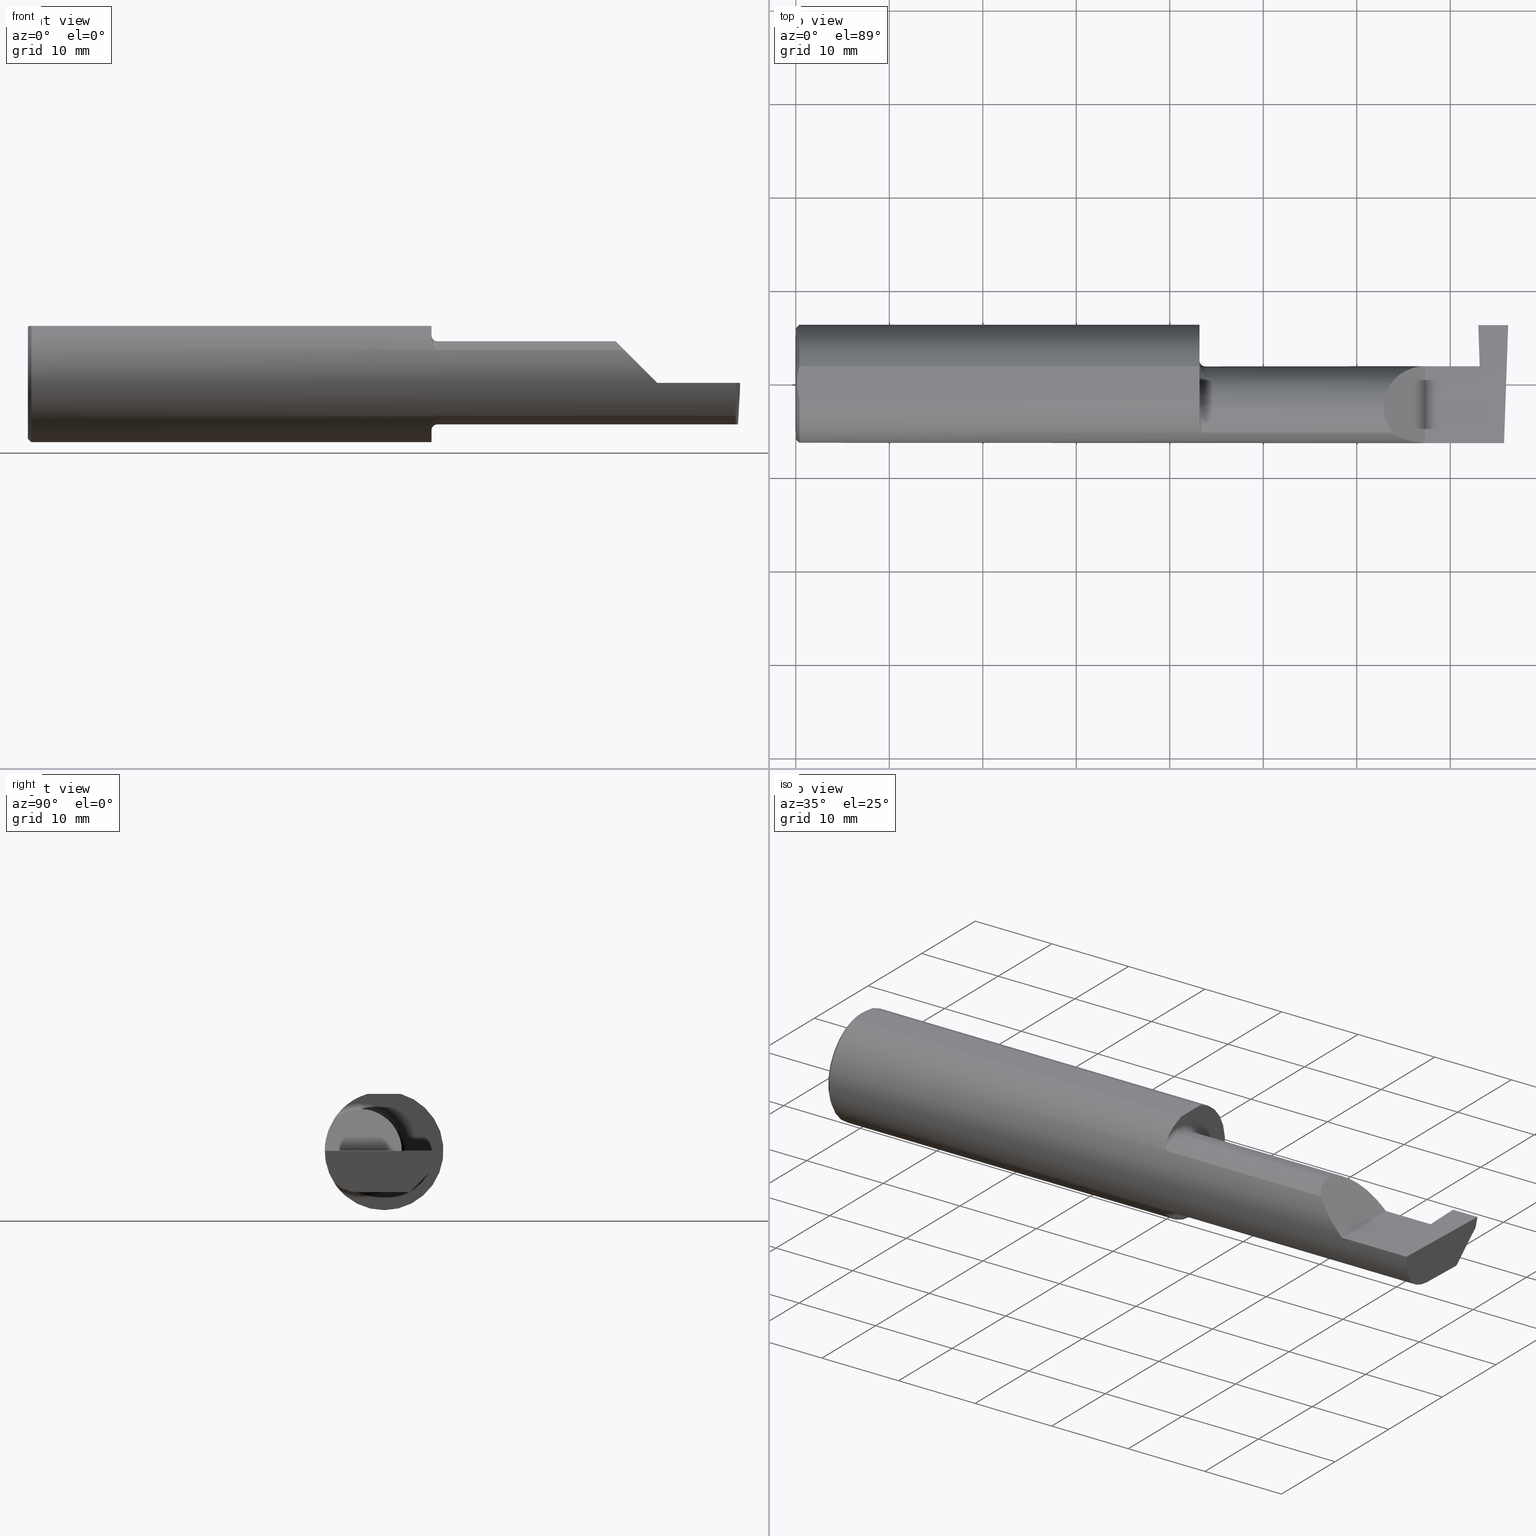
[diagram: canonical four-view strip — front | top / right | iso, engineering-drawing reading convention]
A machine part, canonical four-view strip (front | top / right | iso — engineering-drawing reading convention). The complete STEP part file that produces these views, byte-faithful:
ISO-10303-21;
HEADER;
FILE_DESCRIPTION (( 'STEP AP203' ),
    '1' );
FILE_NAME ('221544-GT125-20.STEP',
    '2024-07-22T22:43:20',
    ( '' ),
    ( '' ),
    'SwSTEP 2.0',
    'SolidWorks 2024',
    '' );
FILE_SCHEMA (( 'CONFIG_CONTROL_DESIGN' ));
ENDSEC;

DATA;
#1 = VECTOR ( 'NONE', #216, 39.37007874015748854 ) ;
#2 = DIRECTION ( 'NONE',  ( 0.000000000000000000, 0.000000000000000000, 1.000000000000000000 ) ) ;
#3 = APPROVAL ( #209, 'UNSPECIFIED' ) ;
#4 = ORIENTED_EDGE ( 'NONE', *, *, #215, .F. ) ;
#5 = DIRECTION ( 'NONE',  ( 0.000000000000000000, -0.000000000000000000, 1.000000000000000000 ) ) ;
#6 =( BOUNDED_CURVE ( )  B_SPLINE_CURVE ( 3, ( #467, #591, #779, #187 ),
 .UNSPECIFIED., .F., .T. ) 
 B_SPLINE_CURVE_WITH_KNOTS ( ( 4, 4 ),
 ( 0.2675252011803428975, 0.9270880441442503894 ),
 .UNSPECIFIED. ) 
 CURVE ( )  GEOMETRIC_REPRESENTATION_ITEM ( )  RATIONAL_B_SPLINE_CURVE ( ( 1.000000000000000000, 0.9640754331822828371, 0.9640754331822828371, 1.000000000000000000 ) ) 
 REPRESENTATION_ITEM ( '' )  );
#7 = CARTESIAN_POINT ( 'NONE',  ( 0.005880636388018714231, -0.02358947477502552903, 0.2398500000000000354 ) ) ;
#8 = ORIENTED_EDGE ( 'NONE', *, *, #760, .T. ) ;
#9 = LINE ( 'NONE', #64, #517 ) ;
#10 = CARTESIAN_POINT ( 'NONE',  ( 0.01499999999999999944, -0.06997856814768359246, 0.2398500000000000076 ) ) ;
#11 = ORIENTED_EDGE ( 'NONE', *, *, #390, .T. ) ;
#12 = CARTESIAN_POINT ( 'NONE',  ( 1.721718393013769610, -0.2077830475237242569, 0.1387513848711936226 ) ) ;
#13 = ADVANCED_FACE ( 'NONE', ( #511 ), #587, .F. ) ;
#14 = CYLINDRICAL_SURFACE ( 'NONE', #556, 0.1749999999999999889 ) ;
#15 = VERTEX_POINT ( 'NONE', #23 ) ;
#16 = SECURITY_CLASSIFICATION ( '', '', #87 ) ;
#17 = CARTESIAN_POINT ( 'NONE',  ( 2.299500000000000099, -0.2080850024789291652, -0.1382955322609665250 ) ) ;
#18 = CARTESIAN_POINT ( 'NONE',  ( 0.01499999999999999944, 0.000000000000000000, 0.000000000000000000 ) ) ;
#19 = ORIENTED_EDGE ( 'NONE', *, *, #328, .F. ) ;
#20 = CARTESIAN_POINT ( 'NONE',  ( 3.000000000000000444, 0.07436327552395199936, -0.1750000000000000167 ) ) ;
#21 = DIRECTION ( 'NONE',  ( -0.03489949670249939406, -0.9993908270190957621, 2.445004146800612422E-16 ) ) ;
#22 = EDGE_CURVE ( 'NONE', #267, #264, #620, .T. ) ;
#23 = CARTESIAN_POINT ( 'NONE',  ( 1.700000000000000178, -0.1008499999999999536, -0.1999999999999999833 ) ) ;
#24 = ORIENTED_EDGE ( 'NONE', *, *, #240, .T. ) ;
#25 = APPROVAL_STATUS ( 'not_yet_approved' ) ;
#26 = CARTESIAN_POINT ( 'NONE',  ( 1.725000000000000089, -0.1008499999999999674, 0.000000000000000000 ) ) ;
#27 = DIRECTION ( 'NONE',  ( -1.000000000000000000, -0.000000000000000000, -0.000000000000000000 ) ) ;
#28 = CONICAL_SURFACE ( 'NONE', #466, 0.2498499999999999888, 0.7853981633974485010 ) ;
#29 = VECTOR ( 'NONE', #659, 39.37007874015748143 ) ;
#30 = APPROVAL_ROLE ( '' ) ;
#31 = DIRECTION ( 'NONE',  ( 0.000000000000000000, 0.000000000000000000, 1.000000000000000000 ) ) ;
#32 = AXIS2_PLACEMENT_3D ( 'NONE', #476, #546, #709 ) ;
#33 = APPROVAL_PERSON_ORGANIZATION ( #712, #3, #645 ) ;
#34 = ORIENTED_EDGE ( 'NONE', *, *, #253, .F. ) ;
#35 = ORIENTED_EDGE ( 'NONE', *, *, #141, .F. ) ;
#36 = DESIGN_CONTEXT ( 'detailed design', #373, 'design' ) ;
#37 = FACE_OUTER_BOUND ( 'NONE', #535, .T. ) ;
#38 = CARTESIAN_POINT ( 'NONE',  ( 0.000000000000000000, 0.06997856814768359246, 0.2398500000000000076 ) ) ;
#39 = ORIENTED_EDGE ( 'NONE', *, *, #561, .F. ) ;
#40 = APPROVAL_ROLE ( '' ) ;
#41 = EDGE_CURVE ( 'NONE', #420, #261, #193, .T. ) ;
#42 = LINE ( 'NONE', #480, #384 ) ;
#43 = LINE ( 'NONE', #232, #138 ) ;
#44 = ORIENTED_EDGE ( 'NONE', *, *, #616, .T. ) ;
#45 = CALENDAR_DATE ( 2024, 22, 7 ) ;
#46 = VECTOR ( 'NONE', #236, 39.37007874015748143 ) ;
#47 = B_SPLINE_CURVE_WITH_KNOTS ( 'NONE', 3,
 ( #792, #242, #730, #181, #431, #670, #375, #119, #370, #244, #490, #732 ),
 .UNSPECIFIED., .F., .F.,
 ( 4, 2, 2, 2, 2, 4 ),
 ( 1.964491429041408350E-07, 0.0001260981470478411324, 0.0002519998449527780849, 0.0005038032407626388169, 0.001007410032382360281, 0.002014623615621801908 ),
 .UNSPECIFIED. ) ;
#48 = DIRECTION ( 'NONE',  ( 0.000000000000000000, 0.000000000000000000, 1.000000000000000000 ) ) ;
#49 = CARTESIAN_POINT ( 'NONE',  ( 2.885036419112081862, -0.01887343476265496492, -0.1750000000000000444 ) ) ;
#50 = VERTEX_POINT ( 'NONE', #757 ) ;
#51 = CARTESIAN_POINT ( 'NONE',  ( 1.700000000000000178, 0.000000000000000000, 0.000000000000000000 ) ) ;
#52 = DIRECTION ( 'NONE',  ( 1.000000000000000000, 0.000000000000000000, 0.000000000000000000 ) ) ;
#53 = EDGE_CURVE ( 'NONE', #608, #605, #455, .T. ) ;
#54 = ORIENTED_EDGE ( 'NONE', *, *, #552, .F. ) ;
#55 = CARTESIAN_POINT ( 'NONE',  ( 2.650000000000000355, 0.07414999999999997982, 4.286263797015727350E-17 ) ) ;
#56 = DIRECTION ( 'NONE',  ( -1.000000000000000000, -0.000000000000000000, -0.000000000000000000 ) ) ;
#57 = ORIENTED_EDGE ( 'NONE', *, *, #96, .F. ) ;
#58 = DIRECTION ( 'NONE',  ( -1.000000000000000000, -0.000000000000000000, -0.000000000000000000 ) ) ;
#59 = ORIENTED_EDGE ( 'NONE', *, *, #182, .T. ) ;
#60 = PRODUCT_DEFINITION_FORMATION_WITH_SPECIFIED_SOURCE ( 'ANY', '', #368, .NOT_KNOWN. ) ;
#61 = CARTESIAN_POINT ( 'NONE',  ( 0.01499999999999999944, 3.059780027669661931E-17, 0.2498499999999999888 ) ) ;
#62 = VERTEX_POINT ( 'NONE', #642 ) ;
#63 = ORIENTED_EDGE ( 'NONE', *, *, #241, .F. ) ;
#64 = CARTESIAN_POINT ( 'NONE',  ( 2.875913319069796525, 0.2366022684371985318, -0.04422206871096982100 ) ) ;
#65 = VECTOR ( 'NONE', #174, 39.37007874015748143 ) ;
#66 = DIRECTION ( 'NONE',  ( 0.000000000000000000, 0.000000000000000000, 1.000000000000000000 ) ) ;
#67 = VERTEX_POINT ( 'NONE', #451 ) ;
#68 = CARTESIAN_POINT ( 'NONE',  ( 1.700000000000000400, -0.1665641037263010105, 0.1863429692936361404 ) ) ;
#69 = CARTESIAN_POINT ( 'NONE',  ( 0.000000000000000000, 0.000000000000000000, 0.000000000000000000 ) ) ;
#70 = VERTEX_POINT ( 'NONE', #343 ) ;
#71 = EDGE_CURVE ( 'NONE', #261, #489, #303, .T. ) ;
#72 = ADVANCED_FACE ( 'NONE', ( #693 ), #775, .T. ) ;
#73 = DIRECTION ( 'NONE',  ( 0.000000000000000000, -0.7071067811865486830, -0.7071067811865463515 ) ) ;
#74 = CARTESIAN_POINT ( 'NONE',  ( 0.004999999999999737293, -0.01183939972798748325, 0.2398500000000000631 ) ) ;
#75 = EDGE_LOOP ( 'NONE', ( #406, #120, #39, #610, #733 ) ) ;
#76 = CARTESIAN_POINT ( 'NONE',  ( 1.717647060162628581, -0.2062109266231183513, 0.1410799729252290025 ) ) ;
#77 = LINE ( 'NONE', #265, #669 ) ;
#78 = CIRCLE ( 'NONE', #682, 0.02499999999999993894 ) ;
#79 = FACE_OUTER_BOUND ( 'NONE', #439, .T. ) ;
#80 = CARTESIAN_POINT ( 'NONE',  ( 2.980479240051444378, -0.2080850024789291652, -0.1382955322609665250 ) ) ;
#81 = ADVANCED_FACE ( 'NONE', ( #145 ), #271, .F. ) ;
#82 = FACE_OUTER_BOUND ( 'NONE', #478, .T. ) ;
#83 = CARTESIAN_POINT ( 'NONE',  ( 2.552984868485333347, -0.2355204011147992438, 0.09701513151466735485 ) ) ;
#84 = AXIS2_PLACEMENT_3D ( 'NONE', #680, #307, #66 ) ;
#85 = DIRECTION ( 'NONE',  ( -1.000000000000000000, -0.000000000000000000, -0.000000000000000000 ) ) ;
#86 = DIRECTION ( 'NONE',  ( -1.000000000000000000, -0.000000000000000000, -0.000000000000000000 ) ) ;
#87 = SECURITY_CLASSIFICATION_LEVEL ( 'unclassified' ) ;
#88 = CARTESIAN_POINT ( 'NONE',  ( 0.000000000000000000, 0.000000000000000000, 0.000000000000000000 ) ) ;
#89 = ORIENTED_EDGE ( 'NONE', *, *, #215, .T. ) ;
#90 = ORIENTED_EDGE ( 'NONE', *, *, #252, .F. ) ;
#91 = APPROVAL_DATE_TIME ( #417, #258 ) ;
#92 = DIRECTION ( 'NONE',  ( 0.000000000000000000, 0.000000000000000000, 1.000000000000000000 ) ) ;
#93 = LOCAL_TIME ( 15, 43, 20.00000000000000000, #221 ) ;
#94 = CARTESIAN_POINT ( 'NONE',  ( 1.700000000000000178, -0.1008499999999999536, -0.1749999999999999889 ) ) ;
#95 = COORDINATED_UNIVERSAL_TIME_OFFSET ( 8, 0, .BEHIND. ) ;
#96 = EDGE_CURVE ( 'NONE', #753, #487, #449, .T. ) ;
#97 = DIRECTION ( 'NONE',  ( 1.000000000000000000, 0.000000000000000000, 0.000000000000000000 ) ) ;
#98 = LINE ( 'NONE', #178, #29 ) ;
#99 = ORIENTED_EDGE ( 'NONE', *, *, #653, .F. ) ;
#100 = APPLICATION_PROTOCOL_DEFINITION ( 'international standard', 'config_control_design', 1994, #373 ) ;
#101 = FACE_OUTER_BOUND ( 'NONE', #623, .T. ) ;
#102 = DIRECTION ( 'NONE',  ( -0.03487823687994804495, 0.9993915692020550745, -2.444309580554224040E-16 ) ) ;
#103 = ORIENTED_EDGE ( 'NONE', *, *, #585, .T. ) ;
#104 = APPLICATION_CONTEXT ( 'configuration controlled 3d designs of mechanical parts and assemblies' ) ;
#105 = TOROIDAL_SURFACE ( 'NONE', #492, 0.1999999999999999833, 0.02499999999999994241 ) ;
#106 = VECTOR ( 'NONE', #515, 39.37007874015748143 ) ;
#107 = DIRECTION ( 'NONE',  ( -1.000000000000000000, -0.000000000000000000, -0.000000000000000000 ) ) ;
#108 = ADVANCED_FACE ( 'NONE', ( #79 ), #401, .F. ) ;
#109 = LINE ( 'NONE', #783, #740 ) ;
#110 = B_SPLINE_CURVE_WITH_KNOTS ( 'NONE', 3,
 ( #275, #396, #518, #698, #782, #218 ),
 .UNSPECIFIED., .F., .F.,
 ( 4, 2, 4 ),
 ( 0.006064768674679249863, 0.006954995897674296282, 0.007845223120669342701 ),
 .UNSPECIFIED. ) ;
#111 = ORIENTED_EDGE ( 'NONE', *, *, #353, .F. ) ;
#112 = LINE ( 'NONE', #354, #315 ) ;
#113 = DIRECTION ( 'NONE',  ( -0.000000000000000000, 2.446352684939718220E-16, 1.000000000000000000 ) ) ;
#114 = AXIS2_PLACEMENT_3D ( 'NONE', #622, #194, #615 ) ;
#115 = ORIENTED_EDGE ( 'NONE', *, *, #280, .T. ) ;
#116 = CARTESIAN_POINT ( 'NONE',  ( 1.700000000000000178, -0.06997856814768374512, 0.2398500000000000076 ) ) ;
#117 = ORIENTED_EDGE ( 'NONE', *, *, #676, .F. ) ;
#118 = AXIS2_PLACEMENT_3D ( 'NONE', #88, #206, #282 ) ;
#119 = CARTESIAN_POINT ( 'NONE',  ( 1.708176740666625060, -0.1972027065478073882, -0.1535263573771913082 ) ) ;
#120 = ORIENTED_EDGE ( 'NONE', *, *, #309, .T. ) ;
#121 = EDGE_CURVE ( 'NONE', #299, #186, #158, .T. ) ;
#122 = DIRECTION ( 'NONE',  ( 0.9987827668610290699, 0.03485699000042882800, 0.03489949669461413218 ) ) ;
#123 = ORIENTED_EDGE ( 'NONE', *, *, #690, .F. ) ;
#124 = AXIS2_PLACEMENT_3D ( 'NONE', #499, #496, #2 ) ;
#125 = DIRECTION ( 'NONE',  ( 1.000000000000000000, 0.000000000000000000, 0.000000000000000000 ) ) ;
#126 = DIRECTION ( 'NONE',  ( 0.7071067811865473507, 8.659560562354935323E-17, 0.7071067811865476838 ) ) ;
#127 = EDGE_LOOP ( 'NONE', ( #705, #318, #63, #24, #117 ) ) ;
#128 = CARTESIAN_POINT ( 'NONE',  ( 1.723329956043142985, -0.2080850024798590603, 0.1382955322595675884 ) ) ;
#129 = VECTOR ( 'NONE', #566, 39.37007874015748143 ) ;
#130 = DIRECTION ( 'NONE',  ( 0.03492071764873293238, 0.000000000000000000, -0.9993900857417474803 ) ) ;
#131 = EDGE_CURVE ( 'NONE', #15, #663, #78, .T. ) ;
#132 = EDGE_LOOP ( 'NONE', ( #416, #230, #338, #177, #168, #435, #525, #180, #671, #398, #149, #505, #602, #302 ) ) ;
#133 = LINE ( 'NONE', #20, #274 ) ;
#134 = CIRCLE ( 'NONE', #317, 0.1749999999999999889 ) ;
#135 = DIRECTION ( 'NONE',  ( 0.9990198516376381788, -5.394573431702560148E-05, 0.04426435500229557868 ) ) ;
#136 = ORIENTED_EDGE ( 'NONE', *, *, #41, .T. ) ;
#137 =( CONVERSION_BASED_UNIT ( 'INCH', #269 ) LENGTH_UNIT ( ) NAMED_UNIT ( #474 ) );
#138 = VECTOR ( 'NONE', #166, 39.37007874015748143 ) ;
#139 = CARTESIAN_POINT ( 'NONE',  ( 2.875372681961405608, 0.07204909126152565790, -0.03119400421533637113 ) ) ;
#140 = CARTESIAN_POINT ( 'NONE',  ( 2.650000000000000355, -0.2498499999999999610, 4.286263797015727350E-17 ) ) ;
#141 = EDGE_CURVE ( 'NONE', #487, #663, #519, .T. ) ;
#142 = CARTESIAN_POINT ( 'NONE',  ( 1.700000000000000178, 0.07414999999999997982, 1.592040838891556384E-16 ) ) ;
#143 = DIRECTION ( 'NONE',  ( -0.03432699337968036363, -0.2586665114180216052, -0.9653565628286482347 ) ) ;
#144 = AXIS2_PLACEMENT_3D ( 'NONE', #777, #56, #654 ) ;
#145 = FACE_OUTER_BOUND ( 'NONE', #306, .T. ) ;
#146 = ORIENTED_EDGE ( 'NONE', *, *, #53, .T. ) ;
#147 = DIRECTION ( 'NONE',  ( -1.000000000000000000, -0.000000000000000000, -0.000000000000000000 ) ) ;
#148 = CARTESIAN_POINT ( 'NONE',  ( 2.511704467739034552, -0.2080850024789292485, 0.1382955322609664139 ) ) ;
#149 = ORIENTED_EDGE ( 'NONE', *, *, #748, .F. ) ;
#150 = AXIS2_PLACEMENT_3D ( 'NONE', #310, #147, #92 ) ;
#151 = CARTESIAN_POINT ( 'NONE',  ( 0.000000000000000000, 0.000000000000000000, 0.000000000000000000 ) ) ;
#152 = CARTESIAN_POINT ( 'NONE',  ( 3.000000000000000444, -0.2500000000000000555, 0.000000000000000000 ) ) ;
#153 = ORIENTED_EDGE ( 'NONE', *, *, #131, .T. ) ;
#154 = APPROVAL_STATUS ( 'not_yet_approved' ) ;
#155 = DIRECTION ( 'NONE',  ( -1.000000000000000000, -0.000000000000000000, -0.000000000000000000 ) ) ;
#156 = EDGE_CURVE ( 'NONE', #62, #272, #699, .T. ) ;
#157 = CARTESIAN_POINT ( 'NONE',  ( 2.650000000000000355, -0.2500000000000000555, 4.286263797015727350E-17 ) ) ;
#158 =( BOUNDED_CURVE ( )  B_SPLINE_CURVE ( 3, ( #140, #636, #83, #148 ),
 .UNSPECIFIED., .F., .F. ) 
 B_SPLINE_CURVE_WITH_KNOTS ( ( 4, 4 ),
 ( 4.712388980384689674, 5.298966915116346321 ),
 .UNSPECIFIED. ) 
 CURVE ( )  GEOMETRIC_REPRESENTATION_ITEM ( )  RATIONAL_B_SPLINE_CURVE ( ( 1.000000000000000000, 0.9715321379117538569, 0.9715321379117538569, 1.000000000000000000 ) ) 
 REPRESENTATION_ITEM ( '' )  );
#159 = ORIENTED_EDGE ( 'NONE', *, *, #266, .F. ) ;
#160 = CARTESIAN_POINT ( 'NONE',  ( 1.700000000000000178, -0.1008499999999999674, 0.000000000000000000 ) ) ;
#161 = LOCAL_TIME ( 15, 43, 20.00000000000000000, #95 ) ;
#162 = PLANE ( 'NONE',  #716 ) ;
#163 = ORIENTED_EDGE ( 'NONE', *, *, #502, .F. ) ;
#164 = DATE_TIME_ROLE ( 'creation_date' ) ;
#165 = CARTESIAN_POINT ( 'NONE',  ( 2.891482443365339439, -0.2537872052982785287, 1.328956783839287718E-17 ) ) ;
#166 = DIRECTION ( 'NONE',  ( -0.000000000000000000, 1.000000000000000000, 0.000000000000000000 ) ) ;
#167 = EDGE_CURVE ( 'NONE', #560, #299, #640, .T. ) ;
#168 = ORIENTED_EDGE ( 'NONE', *, *, #760, .F. ) ;
#169 = EDGE_CURVE ( 'NONE', #50, #548, #211, .T. ) ;
#170 = CARTESIAN_POINT ( 'NONE',  ( 1.725000000000000089, -0.2080850024789292485, 0.1382955322609664972 ) ) ;
#171 = DIRECTION ( 'NONE',  ( -0.03489949670249940100, -0.9993908270190957621, 0.000000000000000000 ) ) ;
#172 = ORIENTED_EDGE ( 'NONE', *, *, #252, .T. ) ;
#173 = APPROVAL ( #25, 'UNSPECIFIED' ) ;
#174 = DIRECTION ( 'NONE',  ( 0.03489949670249940794, 0.9993908270190957621, -4.452728370532699971E-18 ) ) ;
#176 = CARTESIAN_POINT ( 'NONE',  ( 2.994767799596354418, 0.2473327124642303587, -0.1999314649951115241 ) ) ;
#175 = LOCAL_TIME ( 15, 43, 20.00000000000000000, #522 ) ;
#177 = ORIENTED_EDGE ( 'NONE', *, *, #585, .F. ) ;
#178 = CARTESIAN_POINT ( 'NONE',  ( 2.650000000000000355, -0.2500000000000000555, 4.286263797015727350E-17 ) ) ;
#179 = VECTOR ( 'NONE', #477, 39.37007874015748143 ) ;
#180 = ORIENTED_EDGE ( 'NONE', *, *, #22, .F. ) ;
#181 = CARTESIAN_POINT ( 'NONE',  ( 1.718863362722771404, -0.2068301641248771194, -0.1401678546132359982 ) ) ;
#182 = EDGE_CURVE ( 'NONE', #423, #769, #494, .T. ) ;
#183 = ORIENTED_EDGE ( 'NONE', *, *, #634, .T. ) ;
#184 = VECTOR ( 'NONE', #764, 39.37007874015748143 ) ;
#185 = FACE_OUTER_BOUND ( 'NONE', #441, .T. ) ;
#186 = VERTEX_POINT ( 'NONE', #604 ) ;
#187 = CARTESIAN_POINT ( 'NONE',  ( 2.983262242683407006, -0.1008499999999999674, -0.1749999999999999889 ) ) ;
#188 = CARTESIAN_POINT ( 'NONE',  ( 2.825000000000000178, 0.2348243371481683328, -0.04599999999999999922 ) ) ;
#189 = ORIENTED_EDGE ( 'NONE', *, *, #156, .F. ) ;
#190 = FACE_OUTER_BOUND ( 'NONE', #475, .T. ) ;
#191 = ADVANCED_FACE ( 'NONE', ( #290 ), #719, .F. ) ;
#192 = ORIENTED_EDGE ( 'NONE', *, *, #479, .T. ) ;
#193 = CIRCLE ( 'NONE', #234, 0.1999999999999999833 ) ;
#194 = DIRECTION ( 'NONE',  ( -1.000000000000000000, -0.000000000000000000, -0.000000000000000000 ) ) ;
#195 = ORIENTED_EDGE ( 'NONE', *, *, #539, .F. ) ;
#196 = CARTESIAN_POINT ( 'NONE',  ( 1.714343523383978773, -0.2041337200786084161, 0.1440846171672511000 ) ) ;
#197 = ADVANCED_FACE ( 'NONE', ( #607 ), #547, .T. ) ;
#198 = LINE ( 'NONE', #463, #1 ) ;
#199 = ORIENTED_EDGE ( 'NONE', *, *, #552, .T. ) ;
#200 =( NAMED_UNIT ( * ) SI_UNIT ( $, .STERADIAN. ) SOLID_ANGLE_UNIT ( ) );
#201 = CARTESIAN_POINT ( 'NONE',  ( 0.01499999999999999944, 0.000000000000000000, 0.000000000000000000 ) ) ;
#202 = DIRECTION ( 'NONE',  ( 0.000000000000000000, 0.000000000000000000, 1.000000000000000000 ) ) ;
#203 = EDGE_CURVE ( 'NONE', #299, #325, #98, .T. ) ;
#204 = CARTESIAN_POINT ( 'NONE',  ( 1.706159563508733878, -0.1933019864360849271, 0.1584298865564830183 ) ) ;
#205 =( GEOMETRIC_REPRESENTATION_CONTEXT ( 3 ) GLOBAL_UNCERTAINTY_ASSIGNED_CONTEXT ( ( #319 ) ) GLOBAL_UNIT_ASSIGNED_CONTEXT ( ( #137, #254, #200 ) ) REPRESENTATION_CONTEXT ( 'NONE', 'WORKASPACE' ) );
#206 = DIRECTION ( 'NONE',  ( 1.000000000000000000, 0.000000000000000000, 0.000000000000000000 ) ) ;
#207 = DIRECTION ( 'NONE',  ( -0.000000000000000000, 1.000000000000000000, 1.224646799147353207E-16 ) ) ;
#208 = ORIENTED_EDGE ( 'NONE', *, *, #653, .T. ) ;
#209 = APPROVAL_STATUS ( 'not_yet_approved' ) ;
#210 = CARTESIAN_POINT ( 'NONE',  ( 2.873910470583536103, 0.2476916017116004842, 0.002021285105159276521 ) ) ;
#211 = LINE ( 'NONE', #301, #46 ) ;
#212 = VERTEX_POINT ( 'NONE', #350 ) ;
#213 = PERSON_AND_ORGANIZATION ( #770, #657 ) ;
#214 = ADVANCED_FACE ( 'NONE', ( #609 ), #788, .F. ) ;
#215 = EDGE_CURVE ( 'NONE', #663, #369, #794, .T. ) ;
#216 = DIRECTION ( 'NONE',  ( 0.02616100201822768243, -0.0009135623211515309658, 0.9996573249755575929 ) ) ;
#217 = CARTESIAN_POINT ( 'NONE',  ( 2.825000000000000178, 0.2471500000000000086, -3.306546357697639493E-19 ) ) ;
#218 = CARTESIAN_POINT ( 'NONE',  ( 0.004999999999999471013, 5.665694022114171174E-17, 0.2398500000000000076 ) ) ;
#219 = CARTESIAN_POINT ( 'NONE',  ( 2.887013260303944229, 0.07439359513054549788, -0.1998782938404957410 ) ) ;
#220 = ORIENTED_EDGE ( 'NONE', *, *, #700, .T. ) ;
#221 = COORDINATED_UNIVERSAL_TIME_OFFSET ( 8, 0, .BEHIND. ) ;
#222 = DIRECTION ( 'NONE',  ( 0.000000000000000000, 0.000000000000000000, 1.000000000000000000 ) ) ;
#223 = CARTESIAN_POINT ( 'NONE',  ( 1.725000000000000089, -0.1008499999999999674, 0.000000000000000000 ) ) ;
#224 = ADVANCED_FACE ( 'NONE', ( #422 ), #162, .F. ) ;
#225 = ORIENTED_EDGE ( 'NONE', *, *, #169, .F. ) ;
#226 = APPROVAL_DATE_TIME ( #465, #173 ) ;
#227 = CARTESIAN_POINT ( 'NONE',  ( 2.886145020370094016, 0.07436327552395197160, -0.1750000000000000167 ) ) ;
#228 = VECTOR ( 'NONE', #672, 39.37007874015748143 ) ;
#229 = CARTESIAN_POINT ( 'NONE',  ( 3.000000000000000444, 0.07414999999999991043, 7.431225809576783727E-33 ) ) ;
#230 = ORIENTED_EDGE ( 'NONE', *, *, #167, .T. ) ;
#231 = PLANE ( 'NONE',  #32 ) ;
#232 = CARTESIAN_POINT ( 'NONE',  ( 1.700000000000000178, -0.2498499999999999888, 0.2398500000000000076 ) ) ;
#233 = VERTEX_POINT ( 'NONE', #305 ) ;
#234 = AXIS2_PLACEMENT_3D ( 'NONE', #704, #27, #334 ) ;
#235 = CARTESIAN_POINT ( 'NONE',  ( 2.475000000000001421, 0.001662626584708371512, 0.1749999999999999889 ) ) ;
#236 = DIRECTION ( 'NONE',  ( 1.000000000000000000, -0.000000000000000000, -0.000000000000000000 ) ) ;
#237 = LOCAL_TIME ( 15, 43, 20.00000000000000000, #407 ) ;
#238 = ORIENTED_EDGE ( 'NONE', *, *, #426, .T. ) ;
#239 =( BOUNDED_CURVE ( )  B_SPLINE_CURVE ( 3, ( #601, #49, #665, #367 ),
 .UNSPECIFIED., .F., .T. ) 
 B_SPLINE_CURVE_WITH_KNOTS ( ( 4, 4 ),
 ( 3.140373936913444908, 4.443983221546777607 ),
 .UNSPECIFIED. ) 
 CURVE ( )  GEOMETRIC_REPRESENTATION_ITEM ( )  RATIONAL_B_SPLINE_CURVE ( ( 1.000000000000000000, 0.8633269052189371795, 0.8633269052189371795, 1.000000000000000000 ) ) 
 REPRESENTATION_ITEM ( '' )  );
#240 = EDGE_CURVE ( 'NONE', #584, #70, #538, .T. ) ;
#241 = EDGE_CURVE ( 'NONE', #584, #483, #534, .T. ) ;
#242 = CARTESIAN_POINT ( 'NONE',  ( 1.723318040126429640, -0.2080850024789289987, -0.1382955322609666915 ) ) ;
#243 = ORIENTED_EDGE ( 'NONE', *, *, #337, .T. ) ;
#244 = CARTESIAN_POINT ( 'NONE',  ( 1.701385488563270210, -0.1808287530430325862, -0.1728790649396286794 ) ) ;
#245 = ORIENTED_EDGE ( 'NONE', *, *, #676, .T. ) ;
#246 = VECTOR ( 'NONE', #498, 39.37007874015748854 ) ;
#247 = VECTOR ( 'NONE', #21, 39.37007874015748854 ) ;
#248 = AXIS2_PLACEMENT_3D ( 'NONE', #415, #52, #550 ) ;
#249 = LINE ( 'NONE', #61, #574 ) ;
#250 = CC_DESIGN_SECURITY_CLASSIFICATION ( #16, ( #60 ) ) ;
#251 = VERTEX_POINT ( 'NONE', #116 ) ;
#252 = EDGE_CURVE ( 'NONE', #251, #608, #43, .T. ) ;
#253 = EDGE_CURVE ( 'NONE', #668, #489, #625, .T. ) ;
#254 =( NAMED_UNIT ( * ) PLANE_ANGLE_UNIT ( ) SI_UNIT ( $, .RADIAN. ) );
#255 = PLANE ( 'NONE',  #703 ) ;
#256 = ORIENTED_EDGE ( 'NONE', *, *, #700, .F. ) ;
#257 = AXIS2_PLACEMENT_3D ( 'NONE', #69, #324, #555 ) ;
#258 = APPROVAL ( #154, 'UNSPECIFIED' ) ;
#259 =( LENGTH_UNIT ( ) NAMED_UNIT ( * ) SI_UNIT ( $, .METRE. ) );
#260 = CARTESIAN_POINT ( 'NONE',  ( 2.982632426700502215, -0.2498495826666993769, -0.0004566631977452191267 ) ) ;
#261 = VERTEX_POINT ( 'NONE', #728 ) ;
#262 = PLANE ( 'NONE',  #355 ) ;
#263 = DIRECTION ( 'NONE',  ( -1.000000000000000000, -0.000000000000000000, -0.000000000000000000 ) ) ;
#264 = VERTEX_POINT ( 'NONE', #662 ) ;
#265 = CARTESIAN_POINT ( 'NONE',  ( 2.999793790066964672, 0.2455961323656265238, -0.005799112959718751882 ) ) ;
#266 = EDGE_CURVE ( 'NONE', #487, #62, #239, .T. ) ;
#267 = VERTEX_POINT ( 'NONE', #298 ) ;
#268 = EDGE_LOOP ( 'NONE', ( #163, #540, #256, #589, #678, #430 ) ) ;
#269 = LENGTH_MEASURE_WITH_UNIT ( LENGTH_MEASURE( 0.02539999999999999897 ), #259 );
#270 = LINE ( 'NONE', #210, #329 ) ;
#271 = PLANE ( 'NONE',  #722 ) ;
#272 = VERTEX_POINT ( 'NONE', #543 ) ;
#273 = PERSON_AND_ORGANIZATION ( #770, #657 ) ;
#274 = VECTOR ( 'NONE', #314, 39.37007874015748143 ) ;
#275 = CARTESIAN_POINT ( 'NONE',  ( 0.01499999999999998036, 0.06997856814768359246, 0.2398500000000000076 ) ) ;
#276 = AXIS2_PLACEMENT_3D ( 'NONE', #581, #277, #286 ) ;
#277 = DIRECTION ( 'NONE',  ( 0.000000000000000000, -1.000000000000000000, 0.000000000000000000 ) ) ;
#278 = DIRECTION ( 'NONE',  ( 1.000000000000000000, 0.000000000000000000, 0.000000000000000000 ) ) ;
#279 = EDGE_CURVE ( 'NONE', #70, #233, #294, .T. ) ;
#280 = EDGE_CURVE ( 'NONE', #67, #489, #109, .T. ) ;
#281 = VECTOR ( 'NONE', #599, 39.37007874015748854 ) ;
#282 = DIRECTION ( 'NONE',  ( 0.000000000000000000, 0.000000000000000000, -1.000000000000000000 ) ) ;
#283 = DIRECTION ( 'NONE',  ( 1.000000000000000000, 0.000000000000000000, 0.000000000000000000 ) ) ;
#284 = APPLICATION_PROTOCOL_DEFINITION ( 'international standard', 'config_control_design', 1994, #104 ) ;
#285 = DIRECTION ( 'NONE',  ( 0.000000000000000000, 0.000000000000000000, -1.000000000000000000 ) ) ;
#286 = DIRECTION ( 'NONE',  ( 0.000000000000000000, 0.000000000000000000, -1.000000000000000000 ) ) ;
#287 = EDGE_LOOP ( 'NONE', ( #571, #208, #461, #720 ) ) ;
#288 = DIRECTION ( 'NONE',  ( 0.000000000000000000, 0.000000000000000000, 1.000000000000000000 ) ) ;
#289 =( BOUNDED_CURVE ( )  B_SPLINE_CURVE ( 3, ( #296, #542, #436, #346 ),
 .UNSPECIFIED., .F., .T. ) 
 B_SPLINE_CURVE_WITH_KNOTS ( ( 4, 4 ),
 ( 5.623622464215678463, 6.283185307179586232 ),
 .UNSPECIFIED. ) 
 CURVE ( )  GEOMETRIC_REPRESENTATION_ITEM ( )  RATIONAL_B_SPLINE_CURVE ( ( 1.000000000000000000, 0.9640754331822828371, 0.9640754331822828371, 1.000000000000000000 ) ) 
 REPRESENTATION_ITEM ( '' )  );
#290 = FACE_OUTER_BOUND ( 'NONE', #579, .T. ) ;
#291 = ORIENTED_EDGE ( 'NONE', *, *, #444, .F. ) ;
#292 = DATE_AND_TIME ( #697, #175 ) ;
#293 = CARTESIAN_POINT ( 'NONE',  ( 1.700000000000000178, -0.1616050818046604332, -0.1905487340154980169 ) ) ;
#294 = LINE ( 'NONE', #229, #179 ) ;
#295 = EDGE_LOOP ( 'NONE', ( #183, #192, #344, #372, #531, #725 ) ) ;
#296 = CARTESIAN_POINT ( 'NONE',  ( 2.511704467739034552, -0.2080850024789292485, 0.1382955322609664139 ) ) ;
#297 = VECTOR ( 'NONE', #102, 39.37007874015748854 ) ;
#298 = CARTESIAN_POINT ( 'NONE',  ( 0.01499999999999999944, 0.000000000000000000, -0.2498499999999999888 ) ) ;
#299 = VERTEX_POINT ( 'NONE', #427 ) ;
#300 = FACE_OUTER_BOUND ( 'NONE', #470, .T. ) ;
#301 = CARTESIAN_POINT ( 'NONE',  ( 2.825000000000000178, 0.2471500000000000086, -3.306546357697639493E-19 ) ) ;
#302 = ORIENTED_EDGE ( 'NONE', *, *, #363, .T. ) ;
#303 = CIRCLE ( 'NONE', #276, 0.02499999999999993894 ) ;
#304 = ADVANCED_FACE ( 'NONE', ( #362 ), #321, .T. ) ;
#305 = CARTESIAN_POINT ( 'NONE',  ( 2.874000000000000110, 0.07414999999999997982, 1.592040656337303346E-16 ) ) ;
#306 = EDGE_LOOP ( 'NONE', ( #793, #199, #19, #238 ) ) ;
#307 = DIRECTION ( 'NONE',  ( -1.000000000000000000, -0.000000000000000000, -0.000000000000000000 ) ) ;
#308 = ORIENTED_EDGE ( 'NONE', *, *, #749, .T. ) ;
#309 = EDGE_CURVE ( 'NONE', #423, #576, #249, .T. ) ;
#310 = CARTESIAN_POINT ( 'NONE',  ( 1.725000000000000089, -0.1008499999999999674, 0.000000000000000000 ) ) ;
#311 = EDGE_CURVE ( 'NONE', #261, #15, #402, .T. ) ;
#312 = EDGE_LOOP ( 'NONE', ( #717, #59 ) ) ;
#313 = AXIS2_PLACEMENT_3D ( 'NONE', #340, #288, #278 ) ;
#314 = DIRECTION ( 'NONE',  ( 1.000000000000000000, 1.870497743706911121E-16, -4.575890381050107109E-32 ) ) ;
#315 = VECTOR ( 'NONE', #97, 39.37007874015748143 ) ;
#316 = CARTESIAN_POINT ( 'NONE',  ( 2.880975647374412585, 0.2473935949740175555, -0.1998781654038191691 ) ) ;
#317 = AXIS2_PLACEMENT_3D ( 'NONE', #658, #107, #358 ) ;
#318 = ORIENTED_EDGE ( 'NONE', *, *, #761, .F. ) ;
#319 = UNCERTAINTY_MEASURE_WITH_UNIT (LENGTH_MEASURE( 1.000000000000000082E-05 ), #137, 'distance_accuracy_value', 'NONE');
#320 = CARTESIAN_POINT ( 'NONE',  ( 0.000000000000000000, 0.000000000000000000, -0.2348499999999999754 ) ) ;
#321 = CYLINDRICAL_SURFACE ( 'NONE', #257, 0.2498499999999999888 ) ;
#322 = ORIENTED_EDGE ( 'NONE', *, *, #339, .T. ) ;
#323 = CARTESIAN_POINT ( 'NONE',  ( 2.885044364828742047, 0.07436327552395198548, -0.1750000000000000167 ) ) ;
#324 = DIRECTION ( 'NONE',  ( -1.000000000000000000, -0.000000000000000000, -0.000000000000000000 ) ) ;
#325 = VERTEX_POINT ( 'NONE', #741 ) ;
#326 =( BOUNDED_CURVE ( )  B_SPLINE_CURVE ( 3, ( #736, #378, #443, #260 ),
 .UNSPECIFIED., .F., .T. ) 
 B_SPLINE_CURVE_WITH_KNOTS ( ( 4, 4 ),
 ( 0.05713034791898981279, 0.6418805321923489737 ),
 .UNSPECIFIED. ) 
 CURVE ( )  GEOMETRIC_REPRESENTATION_ITEM ( )  RATIONAL_B_SPLINE_CURVE ( ( 1.000000000000000000, 0.9717080070095445166, 0.9717080070095445166, 1.000000000000000000 ) ) 
 REPRESENTATION_ITEM ( '' )  );
#327 = CARTESIAN_POINT ( 'NONE',  ( 3.000000000000000444, -0.2498499999999999888, 0.2398500000000000076 ) ) ;
#328 = EDGE_CURVE ( 'NONE', #508, #365, #504, .T. ) ;
#329 = VECTOR ( 'NONE', #573, 39.37007874015748854 ) ;
#330 = CARTESIAN_POINT ( 'NONE',  ( 3.000000000000000444, -0.1008499999999999813, -0.1749999999999999889 ) ) ;
#331 = ORIENTED_EDGE ( 'NONE', *, *, #141, .T. ) ;
#332 = PLANE ( 'NONE',  #790 ) ;
#333 = CARTESIAN_POINT ( 'NONE',  ( 2.982644377562602589, -0.2498499999999999610, 1.813681607540488003E-17 ) ) ;
#334 = DIRECTION ( 'NONE',  ( 0.000000000000000000, 0.000000000000000000, 1.000000000000000000 ) ) ;
#335 = CIRCLE ( 'NONE', #114, 0.1749999999999999889 ) ;
#336 = LINE ( 'NONE', #567, #247 ) ;
#337 = EDGE_CURVE ( 'NONE', #769, #267, #677, .T. ) ;
#338 = ORIENTED_EDGE ( 'NONE', *, *, #121, .T. ) ;
#339 = EDGE_CURVE ( 'NONE', #576, #264, #562, .T. ) ;
#340 = CARTESIAN_POINT ( 'NONE',  ( 0.000000000000000000, 0.000000000000000000, 0.000000000000000000 ) ) ;
#341 = CARTESIAN_POINT ( 'NONE',  ( 2.874689495973013820, 0.07413112468343002748, -0.01577237022675150382 ) ) ;
#342 = CC_DESIGN_DATE_AND_TIME_ASSIGNMENT ( #292, #456, ( #16 ) ) ;
#343 = CARTESIAN_POINT ( 'NONE',  ( 2.880037608447156394, 0.07414999999999993818, 7.345577941662580874E-18 ) ) ;
#344 = ORIENTED_EDGE ( 'NONE', *, *, #96, .T. ) ;
#345 = SHAPE_DEFINITION_REPRESENTATION ( #429, #603 ) ;
#346 = CARTESIAN_POINT ( 'NONE',  ( 2.475000000000001421, -0.1008499999999999674, 0.1749999999999999889 ) ) ;
#347 = ORIENTED_EDGE ( 'NONE', *, *, #22, .T. ) ;
#348 = PERSON_AND_ORGANIZATION ( #770, #657 ) ;
#349 = CARTESIAN_POINT ( 'NONE',  ( 0.01499999999999998036, 0.06997856814768359246, 0.2398500000000000076 ) ) ;
#350 = CARTESIAN_POINT ( 'NONE',  ( 2.874000000000000110, 0.07414987299205305638, -0.0002108382441793307837 ) ) ;
#351 = ORIENTED_EDGE ( 'NONE', *, *, #71, .T. ) ;
#352 = PERSON_AND_ORGANIZATION ( #770, #657 ) ;
#353 = EDGE_CURVE ( 'NONE', #489, #663, #335, .T. ) ;
#354 = CARTESIAN_POINT ( 'NONE',  ( 2.299500000000000099, -0.2080850024789291652, 0.1382955322609665250 ) ) ;
#355 = AXIS2_PLACEMENT_3D ( 'NONE', #327, #5, #746 ) ;
#356 = CARTESIAN_POINT ( 'NONE',  ( 1.725000000000000089, -0.1008499999999999674, 0.000000000000000000 ) ) ;
#357 = EDGE_LOOP ( 'NONE', ( #493, #90, #627, #136, #512, #673 ) ) ;
#358 = DIRECTION ( 'NONE',  ( 0.000000000000000000, 0.000000000000000000, 1.000000000000000000 ) ) ;
#359 = DIRECTION ( 'NONE',  ( 0.000000000000000000, -1.000000000000000000, 2.446352684939718220E-16 ) ) ;
#360 = EDGE_LOOP ( 'NONE', ( #35, #57, #737, #554, #4 ) ) ;
#361 = CARTESIAN_POINT ( 'NONE',  ( 2.998041052908566595, 0.2295359730721147906, -0.05128836407605352060 ) ) ;
#362 = FACE_OUTER_BOUND ( 'NONE', #132, .T. ) ;
#363 = EDGE_CURVE ( 'NONE', #778, #644, #326, .T. ) ;
#364 = ADVANCED_FACE ( 'NONE', ( #440 ), #434, .T. ) ;
#365 = VERTEX_POINT ( 'NONE', #686 ) ;
#366 =( BOUNDED_CURVE ( )  B_SPLINE_CURVE ( 3, ( #650, #235, #718, #55 ),
 .UNSPECIFIED., .F., .F. ) 
 B_SPLINE_CURVE_WITH_KNOTS ( ( 4, 4 ),
 ( 0.000000000000000000, 1.570796326794896558 ),
 .UNSPECIFIED. ) 
 CURVE ( )  GEOMETRIC_REPRESENTATION_ITEM ( )  RATIONAL_B_SPLINE_CURVE ( ( 1.000000000000000000, 0.8047378541243649375, 0.8047378541243649375, 1.000000000000000000 ) ) 
 REPRESENTATION_ITEM ( '' )  );
#367 = CARTESIAN_POINT ( 'NONE',  ( 2.876037492458068279, 0.06794054266098323303, -0.04620338416404774079 ) ) ;
#368 = PRODUCT ( '221544-GT125-20', '221544-GT125-20', '', ( #652 ) ) ;
#369 = VERTEX_POINT ( 'NONE', #553 ) ;
#370 = CARTESIAN_POINT ( 'NONE',  ( 1.706147634408388125, -0.1932733126899460752, -0.1584637047788196307 ) ) ;
#371 = CC_DESIGN_APPROVAL ( #3, ( #60 ) ) ;
#372 = ORIENTED_EDGE ( 'NONE', *, *, #444, .T. ) ;
#373 = APPLICATION_CONTEXT ( 'configuration controlled 3d designs of mechanical parts and assemblies' ) ;
#374 = ADVANCED_FACE ( 'NONE', ( #387 ), #255, .F. ) ;
#375 = CARTESIAN_POINT ( 'NONE',  ( 1.712579853086619419, -0.2024300470081735470, -0.1464774911482684128 ) ) ;
#376 = ORIENTED_EDGE ( 'NONE', *, *, #600, .T. ) ;
#377 = CARTESIAN_POINT ( 'NONE',  ( 1.700367168219774072, -0.1713400252854603567, 0.1819601557798505298 ) ) ;
#378 = CARTESIAN_POINT ( 'NONE',  ( 2.980602402804240381, -0.2354324170447328057, -0.09714751587400703714 ) ) ;
#379 = ORIENTED_EDGE ( 'NONE', *, *, #121, .F. ) ;
#380 = APPROVAL_PERSON_ORGANIZATION ( #352, #173, #30 ) ;
#381 = CARTESIAN_POINT ( 'NONE',  ( 2.983262242683407006, -0.1008499999999999674, -0.1749999999999999889 ) ) ;
#382 = AXIS2_PLACEMENT_3D ( 'NONE', #176, #710, #171 ) ;
#383 = CARTESIAN_POINT ( 'NONE',  ( 0.009274236576542580976, -0.04692405468904852633, 0.2398500000000000076 ) ) ;
#384 = VECTOR ( 'NONE', #425, 39.37007874015748143 ) ;
#385 = ORIENTED_EDGE ( 'NONE', *, *, #561, .T. ) ;
#386 = DIRECTION ( 'NONE',  ( 0.000000000000000000, 0.000000000000000000, 1.000000000000000000 ) ) ;
#387 = FACE_OUTER_BOUND ( 'NONE', #127, .T. ) ;
#388 = ORIENTED_EDGE ( 'NONE', *, *, #445, .T. ) ;
#389 = ADVANCED_FACE ( 'NONE', ( #744 ), #559, .F. ) ;
#390 = EDGE_CURVE ( 'NONE', #369, #687, #47, .T. ) ;
#391 = CARTESIAN_POINT ( 'NONE',  ( 3.000000000000000444, 0.2471499999999999531, -7.549931466865102584E-16 ) ) ;
#392 = CARTESIAN_POINT ( 'NONE',  ( 1.725000000000000089, -0.1008499999999999536, -0.1999999999999999833 ) ) ;
#393 = CARTESIAN_POINT ( 'NONE',  ( 1.701849548162864600, -0.1805300287242674606, 0.1728462070311780063 ) ) ;
#394 = VECTOR ( 'NONE', #450, 39.37007874015748854 ) ;
#395 = VECTOR ( 'NONE', #570, 39.37007874015748143 ) ;
#396 = CARTESIAN_POINT ( 'NONE',  ( 0.01181966702888963446, 0.05862357455657472849, 0.2398500000000000631 ) ) ;
#397 = CARTESIAN_POINT ( 'NONE',  ( 2.876037492458068723, -2.796095625284332975, -0.04969383453168214893 ) ) ;
#398 = ORIENTED_EDGE ( 'NONE', *, *, #53, .F. ) ;
#399 = ADVANCED_FACE ( 'NONE', ( #185 ), #541, .F. ) ;
#400 = CARTESIAN_POINT ( 'NONE',  ( 0.000000000000000000, 2.967931517733610643E-17, 0.2348499999999999754 ) ) ;
#401 = PLANE ( 'NONE',  #433 ) ;
#402 = CIRCLE ( 'NONE', #124, 0.1999999999999999833 ) ;
#403 = CC_DESIGN_PERSON_AND_ORGANIZATION_ASSIGNMENT ( #649, #516, ( #60 ) ) ;
#404 = CARTESIAN_POINT ( 'NONE',  ( 2.885053225427432810, 0.1783354039560729742, -0.1750000000000000444 ) ) ;
#405 = DIRECTION ( 'NONE',  ( -0.7071067811865454633, 0.000000000000000000, 0.7071067811865495711 ) ) ;
#406 = ORIENTED_EDGE ( 'NONE', *, *, #182, .F. ) ;
#407 = COORDINATED_UNIVERSAL_TIME_OFFSET ( 8, 0, .BEHIND. ) ;
#408 = CARTESIAN_POINT ( 'NONE',  ( 2.885047045968828883, 0.07436332225211045310, -0.1750383420824915270 ) ) ;
#409 = AXIS2_PLACEMENT_3D ( 'NONE', #18, #86, #202 ) ;
#410 = DIRECTION ( 'NONE',  ( -1.224646799147351482E-16, 0.000000000000000000, -1.000000000000000000 ) ) ;
#411 = ORIENTED_EDGE ( 'NONE', *, *, #131, .F. ) ;
#412 = APPROVAL_DATE_TIME ( #462, #3 ) ;
#413 =( BOUNDED_CURVE ( )  B_SPLINE_CURVE ( 3, ( #507, #139, #341, #509 ),
 .UNSPECIFIED., .F., .T. ) 
 B_SPLINE_CURVE_WITH_KNOTS ( ( 4, 4 ),
 ( 4.443983221546778495, 4.709965478757016655 ),
 .UNSPECIFIED. ) 
 CURVE ( )  GEOMETRIC_REPRESENTATION_ITEM ( )  RATIONAL_B_SPLINE_CURVE ( ( 1.000000000000000000, 0.9941131374841131185, 0.9941131374841131185, 1.000000000000000000 ) ) 
 REPRESENTATION_ITEM ( '' )  );
#414 = CARTESIAN_POINT ( 'NONE',  ( 0.004999999999999471013, 5.665694022114171174E-17, 0.2398500000000000076 ) ) ;
#415 = CARTESIAN_POINT ( 'NONE',  ( 1.700000000000000178, 0.2741499999999999493, 0.000000000000000000 ) ) ;
#416 = ORIENTED_EDGE ( 'NONE', *, *, #539, .T. ) ;
#417 = DATE_AND_TIME ( #536, #684 ) ;
#418 = EDGE_CURVE ( 'NONE', #62, #212, #413, .T. ) ;
#419 = CARTESIAN_POINT ( 'NONE',  ( 3.000000000000000444, 0.1783256080881261973, -0.1750000000000000444 ) ) ;
#420 = VERTEX_POINT ( 'NONE', #448 ) ;
#421 = DIRECTION ( 'NONE',  ( -1.000000000000000000, -0.000000000000000000, -0.000000000000000000 ) ) ;
#422 = FACE_OUTER_BOUND ( 'NONE', #295, .T. ) ;
#423 = VERTEX_POINT ( 'NONE', #400 ) ;
#424 = AXIS2_PLACEMENT_3D ( 'NONE', #501, #125, #679 ) ;
#425 = DIRECTION ( 'NONE',  ( 1.000000000000000000, 0.000000000000000000, 0.000000000000000000 ) ) ;
#426 = EDGE_CURVE ( 'NONE', #508, #50, #270, .T. ) ;
#427 = CARTESIAN_POINT ( 'NONE',  ( 2.650000000000000355, -0.2498499999999999610, 4.286263797015727350E-17 ) ) ;
#428 = ORIENTED_EDGE ( 'NONE', *, *, #311, .F. ) ;
#429 = PRODUCT_DEFINITION_SHAPE ( 'NONE', 'NONE',  #457 ) ;
#430 = ORIENTED_EDGE ( 'NONE', *, *, #785, .F. ) ;
#431 = CARTESIAN_POINT ( 'NONE',  ( 1.717611663768900510, -0.2061921161193830676, -0.1411075319999376687 ) ) ;
#432 = ORIENTED_EDGE ( 'NONE', *, *, #279, .T. ) ;
#433 = AXIS2_PLACEMENT_3D ( 'NONE', #157, #689, #405 ) ;
#434 = CYLINDRICAL_SURFACE ( 'NONE', #84, 0.1749999999999999889 ) ;
#435 = ORIENTED_EDGE ( 'NONE', *, *, #727, .F. ) ;
#436 = CARTESIAN_POINT ( 'NONE',  ( 2.475000000000001421, -0.1400387324517231857, 0.1750000000000000167 ) ) ;
#437 = AXIS2_PLACEMENT_3D ( 'NONE', #611, #135, #796 ) ;
#438 = DIRECTION ( 'NONE',  ( 0.7071067811865473507, 0.000000000000000000, -0.7071067811865476838 ) ) ;
#439 = EDGE_LOOP ( 'NONE', ( #773, #379, #593, #765 ) ) ;
#440 = FACE_OUTER_BOUND ( 'NONE', #360, .T. ) ;
#441 = EDGE_LOOP ( 'NONE', ( #123, #153, #89, #11 ) ) ;
#442 = CLOSED_SHELL ( 'NONE', ( #667, #528, #399, #617, #72, #304, #797, #13, #108, #503, #510, #491, #197, #364, #224, #734, #81, #214, #374, #643, #389, #191 ) ) ;
#443 = CARTESIAN_POINT ( 'NONE',  ( 2.981341028891338230, -0.2497592792593404665, -0.04986346618387295371 ) ) ;
#444 = EDGE_CURVE ( 'NONE', #487, #745, #458, .T. ) ;
#445 = EDGE_CURVE ( 'NONE', #264, #251, #702, .T. ) ;
#446 = AXIS2_PLACEMENT_3D ( 'NONE', #674, #776, #222 ) ;
#447 = ORIENTED_EDGE ( 'NONE', *, *, #479, .F. ) ;
#448 = CARTESIAN_POINT ( 'NONE',  ( 1.700000000000000178, -0.1616050818046604332, 0.1905487340154980169 ) ) ;
#449 = LINE ( 'NONE', #330, #598 ) ;
#450 = DIRECTION ( 'NONE',  ( 0.06975643500179386225, 0.001215747646129009549, -0.9975633121428941763 ) ) ;
#451 = CARTESIAN_POINT ( 'NONE',  ( 2.475000000000001421, -0.1008499999999999674, 0.1749999999999999889 ) ) ;
#452 = ORIENTED_EDGE ( 'NONE', *, *, #253, .T. ) ;
#453 = FACE_OUTER_BOUND ( 'NONE', #287, .T. ) ;
#454 = FACE_OUTER_BOUND ( 'NONE', #619, .T. ) ;
#455 = LINE ( 'NONE', #38, #646 ) ;
#456 = DATE_TIME_ROLE ( 'classification_date' ) ;
#457 = PRODUCT_DEFINITION ( 'UNKNOWN', '', #60, #36 ) ;
#458 = LINE ( 'NONE', #404, #721 ) ;
#459 = DIRECTION ( 'NONE',  ( -1.000000000000000000, 0.000000000000000000, 1.224646799147351482E-16 ) ) ;
#460 = VECTOR ( 'NONE', #651, 39.37007874015748854 ) ;
#461 = ORIENTED_EDGE ( 'NONE', *, *, #634, .F. ) ;
#462 = DATE_AND_TIME ( #45, #161 ) ;
#463 = CARTESIAN_POINT ( 'NONE',  ( 2.977412177158956563, -0.2496672875357696664, -0.1999314649951114686 ) ) ;
#464 = DIRECTION ( 'NONE',  ( 0.000000000000000000, -0.9659258262890680902, 0.2588190451025216832 ) ) ;
#465 = DATE_AND_TIME ( #774, #93 ) ;
#466 = AXIS2_PLACEMENT_3D ( 'NONE', #201, #756, #635 ) ;
#467 = CARTESIAN_POINT ( 'NONE',  ( 2.980479240051444378, -0.2080850024789291652, -0.1382955322609665250 ) ) ;
#468 = DIRECTION ( 'NONE',  ( 0.000000000000000000, 0.001218716374663524277, -0.9999992573649232330 ) ) ;
#469 = EDGE_CURVE ( 'NONE', #769, #423, #482, .T. ) ;
#470 = EDGE_LOOP ( 'NONE', ( #411, #428, #351, #612 ) ) ;
#471 = CALENDAR_DATE ( 2024, 22, 7 ) ;
#472 = CARTESIAN_POINT ( 'NONE',  ( 1.725000000000000089, -0.1008499999999999536, -0.1749999999999999889 ) ) ;
#473 = CARTESIAN_POINT ( 'NONE',  ( 2.887013260303944229, 0.07439359513054549788, -0.1998782938404957410 ) ) ;
#474 = DIMENSIONAL_EXPONENTS ( 1.000000000000000000, 0.000000000000000000, 0.000000000000000000, 0.000000000000000000, 0.000000000000000000, 0.000000000000000000, 0.000000000000000000 ) ;
#475 = EDGE_LOOP ( 'NONE', ( #388, #172, #146, #385, #322 ) ) ;
#476 = CARTESIAN_POINT ( 'NONE',  ( 2.885047045968829327, -2.795938602588532884, -0.1785364286363248232 ) ) ;
#477 = DIRECTION ( 'NONE',  ( -1.000000000000000000, -1.871990241922592797E-16, 1.224646799147351482E-16 ) ) ;
#478 = EDGE_LOOP ( 'NONE', ( #500, #115, #34, #103 ) ) ;
#479 = EDGE_CURVE ( 'NONE', #754, #753, #336, .T. ) ;
#480 = CARTESIAN_POINT ( 'NONE',  ( 3.000000000000000444, 0.1058243371481678713, -0.1750000000000000167 ) ) ;
#481 = DIRECTION ( 'NONE',  ( 0.000000000000000000, 0.000000000000000000, 1.000000000000000000 ) ) ;
#482 = CIRCLE ( 'NONE', #631, 0.2348499999999999754 ) ;
#483 = VERTEX_POINT ( 'NONE', #639 ) ;
#484 = CC_DESIGN_PERSON_AND_ORGANIZATION_ASSIGNMENT ( #706, #590, ( #16 ) ) ;
#485 = CIRCLE ( 'NONE', #685, 0.1999999999999999833 ) ;
#486 = DIRECTION ( 'NONE',  ( -1.000000000000000000, -0.000000000000000000, -0.000000000000000000 ) ) ;
#487 = VERTEX_POINT ( 'NONE', #569 ) ;
#488 = CARTESIAN_POINT ( 'NONE',  ( 0.004999999999999471013, 5.665694022114171174E-17, 0.2398500000000000076 ) ) ;
#489 = VERTEX_POINT ( 'NONE', #641 ) ;
#490 = CARTESIAN_POINT ( 'NONE',  ( 1.700000000000000178, -0.1716188362992555616, -0.1820560320165479640 ) ) ;
#491 = ADVANCED_FACE ( 'NONE', ( #752 ), #105, .F. ) ;
#492 = AXIS2_PLACEMENT_3D ( 'NONE', #26, #85, #692 ) ;
#493 = ORIENTED_EDGE ( 'NONE', *, *, #748, .T. ) ;
#494 = CIRCLE ( 'NONE', #144, 0.2348499999999999754 ) ;
#495 = DIRECTION ( 'NONE',  ( 0.000000000000000000, 0.000000000000000000, 1.000000000000000000 ) ) ;
#496 = DIRECTION ( 'NONE',  ( -1.000000000000000000, -0.000000000000000000, -0.000000000000000000 ) ) ;
#497 = EDGE_LOOP ( 'NONE', ( #655, #798, #8, #452 ) ) ;
#498 = DIRECTION ( 'NONE',  ( 0.04426438787458265856, 0.001217521851804606722, -0.9990191097304539358 ) ) ;
#499 = CARTESIAN_POINT ( 'NONE',  ( 1.700000000000000178, -0.1008499999999999674, 0.000000000000000000 ) ) ;
#500 = ORIENTED_EDGE ( 'NONE', *, *, #701, .T. ) ;
#501 = CARTESIAN_POINT ( 'NONE',  ( 1.700000000000000178, 0.000000000000000000, 0.000000000000000000 ) ) ;
#502 = EDGE_CURVE ( 'NONE', #272, #745, #629, .T. ) ;
#503 = ADVANCED_FACE ( 'NONE', ( #454 ), #28, .T. ) ;
#504 = LINE ( 'NONE', #188, #228 ) ;
#505 = ORIENTED_EDGE ( 'NONE', *, *, #390, .F. ) ;
#506 = CARTESIAN_POINT ( 'NONE',  ( 2.990479469570817006, 0.1058243371481679268, -0.1749999999999999889 ) ) ;
#507 = CARTESIAN_POINT ( 'NONE',  ( 2.876037492458068279, 0.06794054266098323303, -0.04620338416404774079 ) ) ;
#508 = VERTEX_POINT ( 'NONE', #580 ) ;
#509 = CARTESIAN_POINT ( 'NONE',  ( 2.874000000000000110, 0.07414987299205305638, -0.0002108382441793307837 ) ) ;
#510 = ADVANCED_FACE ( 'NONE', ( #647 ), #767, .F. ) ;
#511 = FACE_OUTER_BOUND ( 'NONE', #742, .T. ) ;
#512 = ORIENTED_EDGE ( 'NONE', *, *, #311, .T. ) ;
#513 = CARTESIAN_POINT ( 'NONE',  ( 0.000000000000000000, -0.06997856814768359246, 0.2398500000000000076 ) ) ;
#514 = CC_DESIGN_DATE_AND_TIME_ASSIGNMENT ( #638, #164, ( #457 ) ) ;
#515 = DIRECTION ( 'NONE',  ( -1.860109918781713521E-16, 0.9999992573649232330, 0.001218716374663524060 ) ) ;
#516 = PERSON_AND_ORGANIZATION_ROLE ( 'design_supplier' ) ;
#517 = VECTOR ( 'NONE', #743, 39.37007874015748143 ) ;
#518 = CARTESIAN_POINT ( 'NONE',  ( 0.009312860630924745670, 0.04712480857212029278, 0.2398500000000000354 ) ) ;
#519 = LINE ( 'NONE', #94, #395 ) ;
#520 = VECTOR ( 'NONE', #606, 39.37007874015748854 ) ;
#521 = ORIENTED_EDGE ( 'NONE', *, *, #469, .F. ) ;
#522 = COORDINATED_UNIVERSAL_TIME_OFFSET ( 8, 0, .BEHIND. ) ;
#523 = CARTESIAN_POINT ( 'NONE',  ( 1.700000000000000178, -0.1008499999999999674, 0.000000000000000000 ) ) ;
#524 = DIRECTION ( 'NONE',  ( -1.000000000000000000, -0.000000000000000000, -0.000000000000000000 ) ) ;
#525 = ORIENTED_EDGE ( 'NONE', *, *, #445, .F. ) ;
#526 = PERSON_AND_ORGANIZATION_ROLE ( 'creator' ) ;
#527 = EDGE_CURVE ( 'NONE', #778, #369, #577, .T. ) ;
#528 = ADVANCED_FACE ( 'NONE', ( #82 ), #14, .T. ) ;
#529 = CARTESIAN_POINT ( 'NONE',  ( 1.725000000000000089, -0.1008499999999999674, 0.000000000000000000 ) ) ;
#530 = CARTESIAN_POINT ( 'NONE',  ( 0.01499999999999999944, 0.000000000000000000, 0.000000000000000000 ) ) ;
#531 = ORIENTED_EDGE ( 'NONE', *, *, #785, .T. ) ;
#532 = PERSON_AND_ORGANIZATION_ROLE ( 'design_owner' ) ;
#533 = LINE ( 'NONE', #787, #65 ) ;
#534 = LINE ( 'NONE', #592, #297 ) ;
#535 = EDGE_LOOP ( 'NONE', ( #613, #781, #731, #291 ) ) ;
#536 = CALENDAR_DATE ( 2024, 22, 7 ) ;
#537 = LINE ( 'NONE', #165, #281 ) ;
#538 = LINE ( 'NONE', #473, #460 ) ;
#539 = EDGE_CURVE ( 'NONE', #644, #560, #198, .T. ) ;
#540 = ORIENTED_EDGE ( 'NONE', *, *, #795, .F. ) ;
#541 = TOROIDAL_SURFACE ( 'NONE', #150, 0.1999999999999999833, 0.02499999999999994241 ) ;
#542 = CARTESIAN_POINT ( 'NONE',  ( 2.487690731615568307, -0.1771157075472510889, 0.1623092683844330197 ) ) ;
#543 = CARTESIAN_POINT ( 'NONE',  ( 2.876037492458068279, 0.07420629955631044550, -0.04619574797784882503 ) ) ;
#544 = CC_DESIGN_PERSON_AND_ORGANIZATION_ASSIGNMENT ( #273, #526, ( #60 ) ) ;
#545 = ORIENTED_EDGE ( 'NONE', *, *, #280, .F. ) ;
#546 = DIRECTION ( 'NONE',  ( 0.9975640529689512315, -8.501330957465244652E-05, 0.06975638319821841904 ) ) ;
#547 = PLANE ( 'NONE',  #248 ) ;
#548 = VERTEX_POINT ( 'NONE', #391 ) ;
#549 = CIRCLE ( 'NONE', #583, 0.2498499999999999888 ) ;
#550 = DIRECTION ( 'NONE',  ( 0.000000000000000000, 0.000000000000000000, -1.000000000000000000 ) ) ;
#551 = EDGE_LOOP ( 'NONE', ( #660, #696, #189 ) ) ;
#552 = EDGE_CURVE ( 'NONE', #548, #365, #77, .T. ) ;
#553 = CARTESIAN_POINT ( 'NONE',  ( 1.725000000000000089, -0.2080850024789291375, -0.1382955322609665805 ) ) ;
#554 = ORIENTED_EDGE ( 'NONE', *, *, #527, .T. ) ;
#555 = DIRECTION ( 'NONE',  ( 0.000000000000000000, 0.000000000000000000, 1.000000000000000000 ) ) ;
#556 = AXIS2_PLACEMENT_3D ( 'NONE', #523, #263, #747 ) ;
#557 = ORIENTED_EDGE ( 'NONE', *, *, #339, .F. ) ;
#558 = DIRECTION ( 'NONE',  ( -1.000000000000000000, -0.000000000000000000, -0.000000000000000000 ) ) ;
#559 = PLANE ( 'NONE',  #437 ) ;
#560 = VERTEX_POINT ( 'NONE', #333 ) ;
#561 = EDGE_CURVE ( 'NONE', #605, #576, #110, .T. ) ;
#562 = B_SPLINE_CURVE_WITH_KNOTS ( 'NONE', 3,
 ( #488, #74, #7, #383, #564, #10 ),
 .UNSPECIFIED., .F., .F.,
 ( 4, 2, 4 ),
 ( 0.007845223120669342701, 0.008734561288375082555, 0.009623899456080820675 ),
 .UNSPECIFIED. ) ;
#563 = CARTESIAN_POINT ( 'NONE',  ( 2.825000000000000178, 0.2348243371481683328, -0.04599999999999999922 ) ) ;
#564 = CARTESIAN_POINT ( 'NONE',  ( 0.01180609504125290990, -0.05857511741890331081, 0.2398500000000000354 ) ) ;
#565 = ORIENTED_EDGE ( 'NONE', *, *, #203, .F. ) ;
#566 = DIRECTION ( 'NONE',  ( 1.000000000000000000, 0.000000000000000000, 0.000000000000000000 ) ) ;
#567 = CARTESIAN_POINT ( 'NONE',  ( 2.993019781838999194, 0.1785693626775286258, -0.1750000000000000444 ) ) ;
#568 = ORIENTED_EDGE ( 'NONE', *, *, #600, .F. ) ;
#569 = CARTESIAN_POINT ( 'NONE',  ( 2.885029432995152465, -0.1008500000000000091, -0.1749999999999999889 ) ) ;
#570 = DIRECTION ( 'NONE',  ( -1.000000000000000000, -0.000000000000000000, -0.000000000000000000 ) ) ;
#571 = ORIENTED_EDGE ( 'NONE', *, *, #328, .T. ) ;
#572 = LINE ( 'NONE', #142, #129 ) ;
#573 = DIRECTION ( 'NONE',  ( -0.04274495231316564892, 0.2585824888546562894, 0.9650429863531866381 ) ) ;
#574 = VECTOR ( 'NONE', #126, 39.37007874015748143 ) ;
#575 = DIRECTION ( 'NONE',  ( 0.000000000000000000, 0.000000000000000000, -1.000000000000000000 ) ) ;
#576 = VERTEX_POINT ( 'NONE', #414 ) ;
#577 = LINE ( 'NONE', #17, #597 ) ;
#578 = CARTESIAN_POINT ( 'NONE',  ( 4.499279347985559139E-32, -0.2498499999999999610, 3.673940397442053459E-16 ) ) ;
#579 = EDGE_LOOP ( 'NONE', ( #44, #447, #99, #54, #568, #195, #789 ) ) ;
#580 = CARTESIAN_POINT ( 'NONE',  ( 2.876037492458068279, 0.2348243371481683328, -0.04599999999999999922 ) ) ;
#581 = CARTESIAN_POINT ( 'NONE',  ( 1.725000000000000089, -0.1008499999999999674, 0.1999999999999999833 ) ) ;
#582 = APPROVAL_PERSON_ORGANIZATION ( #594, #258, #40 ) ;
#583 = AXIS2_PLACEMENT_3D ( 'NONE', #51, #586, #285 ) ;
#584 = VERTEX_POINT ( 'NONE', #227 ) ;
#585 = EDGE_CURVE ( 'NONE', #668, #186, #112, .T. ) ;
#586 = DIRECTION ( 'NONE',  ( 1.000000000000000000, 0.000000000000000000, 0.000000000000000000 ) ) ;
#587 = PLANE ( 'NONE',  #758 ) ;
#588 = AXIS2_PLACEMENT_3D ( 'NONE', #356, #486, #481 ) ;
#589 = ORIENTED_EDGE ( 'NONE', *, *, #279, .F. ) ;
#590 = PERSON_AND_ORGANIZATION_ROLE ( 'classification_officer' ) ;
#591 = CARTESIAN_POINT ( 'NONE',  ( 2.980931506555613453, -0.1771157075472509779, -0.1623092683844330475 ) ) ;
#592 = CARTESIAN_POINT ( 'NONE',  ( 2.882659707296773011, 0.1742304939701101174, -0.1750000000000000444 ) ) ;
#593 = ORIENTED_EDGE ( 'NONE', *, *, #203, .T. ) ;
#594 = PERSON_AND_ORGANIZATION ( #770, #657 ) ;
#595 = CC_DESIGN_PERSON_AND_ORGANIZATION_ASSIGNMENT ( #213, #532, ( #368 ) ) ;
#596 = AXIS2_PLACEMENT_3D ( 'NONE', #621, #558, #386 ) ;
#597 = VECTOR ( 'NONE', #155, 39.37007874015748143 ) ;
#598 = VECTOR ( 'NONE', #708, 39.37007874015748143 ) ;
#599 = DIRECTION ( 'NONE',  ( 0.03487823687994805882, -0.9993915692020550745, -4.023838201466321508E-18 ) ) ;
#600 = EDGE_CURVE ( 'NONE', #560, #548, #533, .T. ) ;
#601 = CARTESIAN_POINT ( 'NONE',  ( 2.885029432995152465, -0.1008500000000000091, -0.1749999999999999889 ) ) ;
#602 = ORIENTED_EDGE ( 'NONE', *, *, #527, .F. ) ;
#603 = ADVANCED_BREP_SHAPE_REPRESENTATION ( '221544-GT125-20', ( #791, #313 ), #205 ) ;
#604 = CARTESIAN_POINT ( 'NONE',  ( 2.511704467739034552, -0.2080850024789292485, 0.1382955322609664139 ) ) ;
#605 = VERTEX_POINT ( 'NONE', #349 ) ;
#606 = DIRECTION ( 'NONE',  ( -0.04317993108637931121, -0.7064472710512011977, -0.7064472710511988662 ) ) ;
#607 = FACE_OUTER_BOUND ( 'NONE', #357, .T. ) ;
#608 = VERTEX_POINT ( 'NONE', #723 ) ;
#609 = FACE_OUTER_BOUND ( 'NONE', #268, .T. ) ;
#610 = ORIENTED_EDGE ( 'NONE', *, *, #786, .T. ) ;
#611 = CARTESIAN_POINT ( 'NONE',  ( 2.876037492458068723, -2.796095625284332975, -0.04969383453168214893 ) ) ;
#612 = ORIENTED_EDGE ( 'NONE', *, *, #353, .T. ) ;
#613 = ORIENTED_EDGE ( 'NONE', *, *, #266, .T. ) ;
#614 = CARTESIAN_POINT ( 'NONE',  ( 1.718876997637615034, -0.2068363917296600907, 0.1401586554522229189 ) ) ;
#615 = DIRECTION ( 'NONE',  ( 0.000000000000000000, 0.000000000000000000, 1.000000000000000000 ) ) ;
#616 = EDGE_CURVE ( 'NONE', #778, #753, #6, .T. ) ;
#617 = ADVANCED_FACE ( 'NONE', ( #300 ), #618, .F. ) ;
#618 = TOROIDAL_SURFACE ( 'NONE', #726, 0.1999999999999999833, 0.02499999999999994241 ) ;
#619 = EDGE_LOOP ( 'NONE', ( #681, #521, #243, #347, #557 ) ) ;
#620 = CIRCLE ( 'NONE', #409, 0.2498499999999999888 ) ;
#621 = CARTESIAN_POINT ( 'NONE',  ( 0.01499999999999999944, 0.000000000000000000, 0.000000000000000000 ) ) ;
#622 = CARTESIAN_POINT ( 'NONE',  ( 1.725000000000000089, -0.1008499999999999674, 0.000000000000000000 ) ) ;
#623 = EDGE_LOOP ( 'NONE', ( #159, #331, #111, #545, #750, #308, #220, #784 ) ) ;
#624 = DIRECTION ( 'NONE',  ( 0.000000000000000000, -0.7071067811865463515, 0.7071067811865486830 ) ) ;
#625 = CIRCLE ( 'NONE', #588, 0.1749999999999999889 ) ;
#626 = CARTESIAN_POINT ( 'NONE',  ( 0.01499999999999999944, 0.000000000000000000, -0.2498499999999999888 ) ) ;
#627 = ORIENTED_EDGE ( 'NONE', *, *, #727, .T. ) ;
#628 = CARTESIAN_POINT ( 'NONE',  ( 1.725000000000000089, -0.2080850024789292485, 0.1382955322609664972 ) ) ;
#629 = LINE ( 'NONE', #408, #394 ) ;
#630 = DIRECTION ( 'NONE',  ( 0.000000000000000000, 0.000000000000000000, 1.000000000000000000 ) ) ;
#631 = AXIS2_PLACEMENT_3D ( 'NONE', #151, #688, #31 ) ;
#632 = AXIS2_PLACEMENT_3D ( 'NONE', #530, #283, #575 ) ;
#633 = CARTESIAN_POINT ( 'NONE',  ( 1.708182335268384477, -0.1972192205116131691, 0.1535061413537209818 ) ) ;
#634 = EDGE_CURVE ( 'NONE', #483, #754, #42, .T. ) ;
#635 = DIRECTION ( 'NONE',  ( 0.000000000000000000, 0.000000000000000000, -1.000000000000000000 ) ) ;
#636 = CARTESIAN_POINT ( 'NONE',  ( 2.600434159100403875, -0.2498499999999999055, 0.04956584089959691769 ) ) ;
#637 = B_SPLINE_CURVE_WITH_KNOTS ( 'NONE', 3,
 ( #691, #68, #377, #393, #755, #204, #633, #683, #196, #76, #614, #12, #128, #628 ),
 .UNSPECIFIED., .F., .F.,
 ( 4, 2, 2, 2, 2, 2, 4 ),
 ( 0.0003834465838148164922, 0.0008781406165086738831, 0.001372834649202531437, 0.001867528681896388773, 0.002114875698243311695, 0.002238549206416766760, 0.002362222714590221824 ),
 .UNSPECIFIED. ) ;
#638 = DATE_AND_TIME ( #471, #237 ) ;
#639 = CARTESIAN_POINT ( 'NONE',  ( 2.885047045968828883, 0.1058243371481679823, -0.1749999999999999334 ) ) ;
#640 = LINE ( 'NONE', #578, #184 ) ;
#641 = CARTESIAN_POINT ( 'NONE',  ( 1.725000000000000089, -0.1008499999999999674, 0.1749999999999999889 ) ) ;
#642 = CARTESIAN_POINT ( 'NONE',  ( 2.876037492458068279, 0.06794054266098323303, -0.04620338416404774079 ) ) ;
#643 = ADVANCED_FACE ( 'NONE', ( #37 ), #231, .F. ) ;
#644 = VERTEX_POINT ( 'NONE', #771 ) ;
#645 = APPROVAL_ROLE ( '' ) ;
#646 = VECTOR ( 'NONE', #524, 39.37007874015748143 ) ;
#647 = FACE_OUTER_BOUND ( 'NONE', #312, .T. ) ;
#648 = ORIENTED_EDGE ( 'NONE', *, *, #167, .F. ) ;
#649 = PERSON_AND_ORGANIZATION ( #770, #657 ) ;
#650 = CARTESIAN_POINT ( 'NONE',  ( 2.475000000000001421, -0.1008499999999999674, 0.1749999999999999889 ) ) ;
#651 = DIRECTION ( 'NONE',  ( -0.03487823687206274836, -0.001217974870087560951, 0.9993908270190957621 ) ) ;
#652 = MECHANICAL_CONTEXT ( 'NONE', #104, 'mechanical' ) ;
#653 = EDGE_CURVE ( 'NONE', #365, #754, #661, .T. ) ;
#654 = DIRECTION ( 'NONE',  ( 0.000000000000000000, 0.000000000000000000, 1.000000000000000000 ) ) ;
#655 = ORIENTED_EDGE ( 'NONE', *, *, #71, .F. ) ;
#656 = CC_DESIGN_PERSON_AND_ORGANIZATION_ASSIGNMENT ( #348, #766, ( #457 ) ) ;
#657 = ORGANIZATION ( 'UNSPECIFIED', 'UNSPECIFIED', '' ) ;
#658 = CARTESIAN_POINT ( 'NONE',  ( 2.874000000000000110, -0.1008499999999999674, 0.000000000000000000 ) ) ;
#659 = DIRECTION ( 'NONE',  ( -0.000000000000000000, 1.000000000000000000, -0.000000000000000000 ) ) ;
#660 = ORIENTED_EDGE ( 'NONE', *, *, #418, .T. ) ;
#661 = LINE ( 'NONE', #361, #520 ) ;
#662 = CARTESIAN_POINT ( 'NONE',  ( 0.01499999999999999944, -0.06997856814768359246, 0.2398500000000000076 ) ) ;
#663 = VERTEX_POINT ( 'NONE', #472 ) ;
#664 = AXIS2_PLACEMENT_3D ( 'NONE', #219, #780, #468 ) ;
#665 = CARTESIAN_POINT ( 'NONE',  ( 2.881564601548835647, 0.04629714416892564965, -0.1252712066320194051 ) ) ;
#666 = EDGE_CURVE ( 'NONE', #67, #325, #366, .T. ) ;
#667 = ADVANCED_FACE ( 'NONE', ( #101 ), #714, .T. ) ;
#668 = VERTEX_POINT ( 'NONE', #170 ) ;
#669 = VECTOR ( 'NONE', #143, 39.37007874015748854 ) ;
#670 = CARTESIAN_POINT ( 'NONE',  ( 1.714302603425052363, -0.2041009206016213828, -0.1441313430770039816 ) ) ;
#671 = ORIENTED_EDGE ( 'NONE', *, *, #786, .F. ) ;
#672 = DIRECTION ( 'NONE',  ( 1.000000000000000000, -0.000000000000000000, -0.000000000000000000 ) ) ;
#673 = ORIENTED_EDGE ( 'NONE', *, *, #690, .T. ) ;
#674 = CARTESIAN_POINT ( 'NONE',  ( 1.700000000000000178, -0.1008499999999999674, 0.000000000000000000 ) ) ;
#675 = VECTOR ( 'NONE', #438, 39.37007874015748143 ) ;
#676 = EDGE_CURVE ( 'NONE', #50, #70, #537, .T. ) ;
#677 = LINE ( 'NONE', #626, #675 ) ;
#678 = ORIENTED_EDGE ( 'NONE', *, *, #240, .F. ) ;
#679 = DIRECTION ( 'NONE',  ( 0.000000000000000000, 0.000000000000000000, -1.000000000000000000 ) ) ;
#680 = CARTESIAN_POINT ( 'NONE',  ( 1.700000000000000178, -0.1008499999999999674, 0.000000000000000000 ) ) ;
#681 = ORIENTED_EDGE ( 'NONE', *, *, #309, .F. ) ;
#682 = AXIS2_PLACEMENT_3D ( 'NONE', #392, #207, #630 ) ;
#683 = CARTESIAN_POINT ( 'NONE',  ( 1.712616400345754908, -0.2024684335577102146, 0.1464246884265637538 ) ) ;
#684 = LOCAL_TIME ( 15, 43, 20.00000000000000000, #759 ) ;
#685 = AXIS2_PLACEMENT_3D ( 'NONE', #160, #735, #495 ) ;
#686 = CARTESIAN_POINT ( 'NONE',  ( 2.998364291748493393, 0.2348243371481683328, -0.04599999999999999922 ) ) ;
#687 = VERTEX_POINT ( 'NONE', #293 ) ;
#688 = DIRECTION ( 'NONE',  ( -1.000000000000000000, -0.000000000000000000, -0.000000000000000000 ) ) ;
#689 = DIRECTION ( 'NONE',  ( -0.7071067811865495711, 0.000000000000000000, -0.7071067811865454633 ) ) ;
#690 = EDGE_CURVE ( 'NONE', #15, #687, #485, .T. ) ;
#691 = CARTESIAN_POINT ( 'NONE',  ( 1.700000000000000178, -0.1616050818046604332, 0.1905487340154980169 ) ) ;
#692 = DIRECTION ( 'NONE',  ( 0.000000000000000000, 0.000000000000000000, 1.000000000000000000 ) ) ;
#693 = FACE_OUTER_BOUND ( 'NONE', #75, .T. ) ;
#694 = CIRCLE ( 'NONE', #596, 0.2498499999999999888 ) ;
#695 = VECTOR ( 'NONE', #707, 39.37007874015748143 ) ;
#696 = ORIENTED_EDGE ( 'NONE', *, *, #795, .T. ) ;
#697 = CALENDAR_DATE ( 2024, 22, 7 ) ;
#698 = CARTESIAN_POINT ( 'NONE',  ( 0.005899890343961325216, 0.02378560009989246285, 0.2398500000000000076 ) ) ;
#699 = LINE ( 'NONE', #397, #106 ) ;
#700 = EDGE_CURVE ( 'NONE', #233, #212, #134, .T. ) ;
#701 = EDGE_CURVE ( 'NONE', #186, #67, #289, .T. ) ;
#702 = LINE ( 'NONE', #513, #695 ) ;
#703 = AXIS2_PLACEMENT_3D ( 'NONE', #316, #122, #130 ) ;
#704 = CARTESIAN_POINT ( 'NONE',  ( 1.700000000000000178, -0.1008499999999999674, 0.000000000000000000 ) ) ;
#705 = ORIENTED_EDGE ( 'NONE', *, *, #426, .F. ) ;
#706 = PERSON_AND_ORGANIZATION ( #770, #657 ) ;
#707 = DIRECTION ( 'NONE',  ( 1.000000000000000000, 0.000000000000000000, 0.000000000000000000 ) ) ;
#708 = DIRECTION ( 'NONE',  ( -1.000000000000000000, -0.000000000000000000, -0.000000000000000000 ) ) ;
#709 = DIRECTION ( 'NONE',  ( 0.06975638345029228082, 0.000000000000000000, -0.9975640565737800003 ) ) ;
#710 = DIRECTION ( 'NONE',  ( -0.9990483607430196145, 0.03488753751661385211, 0.02617694830785935456 ) ) ;
#711 = CC_DESIGN_APPROVAL ( #258, ( #16 ) ) ;
#712 = PERSON_AND_ORGANIZATION ( #770, #657 ) ;
#713 = CC_DESIGN_APPROVAL ( #173, ( #457 ) ) ;
#714 = CYLINDRICAL_SURFACE ( 'NONE', #446, 0.1749999999999999889 ) ;
#715 = DIRECTION ( 'NONE',  ( 0.000000000000000000, 0.000000000000000000, 1.000000000000000000 ) ) ;
#716 = AXIS2_PLACEMENT_3D ( 'NONE', #419, #113, #359 ) ;
#717 = ORIENTED_EDGE ( 'NONE', *, *, #469, .T. ) ;
#718 = CARTESIAN_POINT ( 'NONE',  ( 2.547487373415292744, 0.07414999999999996594, 0.1025126265847083745 ) ) ;
#719 = PLANE ( 'NONE',  #382 ) ;
#720 = ORIENTED_EDGE ( 'NONE', *, *, #761, .T. ) ;
#721 = VECTOR ( 'NONE', #762, 39.37007874015748854 ) ;
#722 = AXIS2_PLACEMENT_3D ( 'NONE', #217, #464, #772 ) ;
#723 = CARTESIAN_POINT ( 'NONE',  ( 1.700000000000000178, 0.06997856814768360634, 0.2398500000000000076 ) ) ;
#724 = DIRECTION ( 'NONE',  ( -1.000000000000000000, -0.000000000000000000, -0.000000000000000000 ) ) ;
#725 = ORIENTED_EDGE ( 'NONE', *, *, #241, .T. ) ;
#726 = AXIS2_PLACEMENT_3D ( 'NONE', #529, #421, #48 ) ;
#727 = EDGE_CURVE ( 'NONE', #251, #420, #549, .T. ) ;
#728 = CARTESIAN_POINT ( 'NONE',  ( 1.700000000000000178, -0.1008499999999999674, 0.1999999999999999833 ) ) ;
#729 = ORIENTED_EDGE ( 'NONE', *, *, #749, .F. ) ;
#730 = CARTESIAN_POINT ( 'NONE',  ( 1.721700027347578876, -0.2077785947292768443, -0.1387580622202825020 ) ) ;
#731 = ORIENTED_EDGE ( 'NONE', *, *, #502, .T. ) ;
#732 = CARTESIAN_POINT ( 'NONE',  ( 1.700000000000000178, -0.1616050818046604332, -0.1905487340154980169 ) ) ;
#733 = ORIENTED_EDGE ( 'NONE', *, *, #337, .F. ) ;
#734 = ADVANCED_FACE ( 'NONE', ( #453 ), #332, .F. ) ;
#735 = DIRECTION ( 'NONE',  ( -1.000000000000000000, -0.000000000000000000, -0.000000000000000000 ) ) ;
#736 = CARTESIAN_POINT ( 'NONE',  ( 2.980479240051444378, -0.2080850024789291652, -0.1382955322609665250 ) ) ;
#737 = ORIENTED_EDGE ( 'NONE', *, *, #616, .F. ) ;
#738 = PRODUCT_RELATED_PRODUCT_CATEGORY ( 'detail', '', ( #368 ) ) ;
#739 = LINE ( 'NONE', #751, #246 ) ;
#740 = VECTOR ( 'NONE', #724, 39.37007874015748143 ) ;
#741 = CARTESIAN_POINT ( 'NONE',  ( 2.650000000000000355, 0.07414999999999997982, 4.286263797015727350E-17 ) ) ;
#742 = EDGE_LOOP ( 'NONE', ( #648, #376, #225, #245, #432, #729, #565 ) ) ;
#743 = DIRECTION ( 'NONE',  ( -0.04932528479609450678, 0.7062460676987120101, 0.7062460676987096786 ) ) ;
#744 = FACE_OUTER_BOUND ( 'NONE', #551, .T. ) ;
#745 = VERTEX_POINT ( 'NONE', #323 ) ;
#746 = DIRECTION ( 'NONE',  ( 1.000000000000000000, 0.000000000000000000, -0.000000000000000000 ) ) ;
#747 = DIRECTION ( 'NONE',  ( 0.000000000000000000, 0.000000000000000000, 1.000000000000000000 ) ) ;
#748 = EDGE_CURVE ( 'NONE', #687, #608, #763, .T. ) ;
#749 = EDGE_CURVE ( 'NONE', #325, #233, #572, .T. ) ;
#750 = ORIENTED_EDGE ( 'NONE', *, *, #666, .T. ) ;
#751 = CARTESIAN_POINT ( 'NONE',  ( 2.876037492458068279, 0.07420629955631043162, -0.04619574797784884584 ) ) ;
#752 = FACE_OUTER_BOUND ( 'NONE', #497, .T. ) ;
#753 = VERTEX_POINT ( 'NONE', #381 ) ;
#754 = VERTEX_POINT ( 'NONE', #506 ) ;
#755 = CARTESIAN_POINT ( 'NONE',  ( 1.702968662030528657, -0.1849684355203378150, 0.1680843977756267538 ) ) ;
#756 = DIRECTION ( 'NONE',  ( 1.000000000000000000, 0.000000000000000000, 0.000000000000000000 ) ) ;
#757 = CARTESIAN_POINT ( 'NONE',  ( 2.874000000000000110, 0.2471500000000000086, -3.306546357697639493E-19 ) ) ;
#758 = AXIS2_PLACEMENT_3D ( 'NONE', #152, #410, #459 ) ;
#759 = COORDINATED_UNIVERSAL_TIME_OFFSET ( 8, 0, .BEHIND. ) ;
#760 = EDGE_CURVE ( 'NONE', #420, #668, #637, .T. ) ;
#761 = EDGE_CURVE ( 'NONE', #483, #508, #9, .T. ) ;
#762 = DIRECTION ( 'NONE',  ( 8.522090287129319196E-05, 0.9999999963686987403, -2.446351747218456217E-16 ) ) ;
#763 = CIRCLE ( 'NONE', #424, 0.2498499999999999888 ) ;
#764 = DIRECTION ( 'NONE',  ( -1.000000000000000000, -0.000000000000000000, -0.000000000000000000 ) ) ;
#765 = ORIENTED_EDGE ( 'NONE', *, *, #666, .F. ) ;
#766 = PERSON_AND_ORGANIZATION_ROLE ( 'creator' ) ;
#767 = PLANE ( 'NONE',  #118 ) ;
#768 = AXIS2_PLACEMENT_3D ( 'NONE', #223, #58, #715 ) ;
#769 = VERTEX_POINT ( 'NONE', #320 ) ;
#770 = PERSON ( 'UNSPECIFIED', 'UNSPECIFIED', 'UNSPECIFIED', ('UNSPECIFIED'), ('UNSPECIFIED'), ('UNSPECIFIED') ) ;
#771 = CARTESIAN_POINT ( 'NONE',  ( 2.982632426700502215, -0.2498495826666993769, -0.0004566631977452191267 ) ) ;
#772 = DIRECTION ( 'NONE',  ( 0.000000000000000000, -0.2588190451025216277, -0.9659258262890679791 ) ) ;
#773 = ORIENTED_EDGE ( 'NONE', *, *, #701, .F. ) ;
#774 = CALENDAR_DATE ( 2024, 22, 7 ) ;
#775 = CONICAL_SURFACE ( 'NONE', #632, 0.2498499999999999888, 0.7853981633974485010 ) ;
#776 = DIRECTION ( 'NONE',  ( -1.000000000000000000, -0.000000000000000000, -0.000000000000000000 ) ) ;
#777 = CARTESIAN_POINT ( 'NONE',  ( 0.000000000000000000, 0.000000000000000000, 0.000000000000000000 ) ) ;
#778 = VERTEX_POINT ( 'NONE', #80 ) ;
#779 = CARTESIAN_POINT ( 'NONE',  ( 2.981893741990786495, -0.1400387324517231025, -0.1750000000000000167 ) ) ;
#780 = DIRECTION ( 'NONE',  ( 1.870496354609675114E-16, -0.9999992573649233440, -0.001218716374663524494 ) ) ;
#781 = ORIENTED_EDGE ( 'NONE', *, *, #156, .T. ) ;
#782 = CARTESIAN_POINT ( 'NONE',  ( 0.004999999999999748569, 0.01185123536186986556, 0.2398500000000000354 ) ) ;
#783 = CARTESIAN_POINT ( 'NONE',  ( 1.700000000000000178, -0.1008499999999999674, 0.1749999999999999889 ) ) ;
#784 = ORIENTED_EDGE ( 'NONE', *, *, #418, .F. ) ;
#785 = EDGE_CURVE ( 'NONE', #745, #584, #133, .T. ) ;
#786 = EDGE_CURVE ( 'NONE', #605, #267, #694, .T. ) ;
#787 = CARTESIAN_POINT ( 'NONE',  ( 2.982660284539054629, -0.2493944837933358694, 2.123502703737254632E-18 ) ) ;
#788 = PLANE ( 'NONE',  #664 ) ;
#789 = ORIENTED_EDGE ( 'NONE', *, *, #363, .F. ) ;
#790 = AXIS2_PLACEMENT_3D ( 'NONE', #563, #624, #73 ) ;
#791 = MANIFOLD_SOLID_BREP ( 'Front Angle', #442 ) ;
#792 = CARTESIAN_POINT ( 'NONE',  ( 1.725000000000000089, -0.2080850024789291375, -0.1382955322609665805 ) ) ;
#793 = ORIENTED_EDGE ( 'NONE', *, *, #169, .T. ) ;
#794 = CIRCLE ( 'NONE', #768, 0.1749999999999999889 ) ;
#795 = EDGE_CURVE ( 'NONE', #212, #272, #739, .T. ) ;
#796 = DIRECTION ( 'NONE',  ( 0.04426435506670335640, 0.000000000000000000, -0.9990198530912830499 ) ) ;
#797 = ADVANCED_FACE ( 'NONE', ( #190 ), #262, .T. ) ;
#798 = ORIENTED_EDGE ( 'NONE', *, *, #41, .F. ) ;
ENDSEC;
END-ISO-10303-21;
